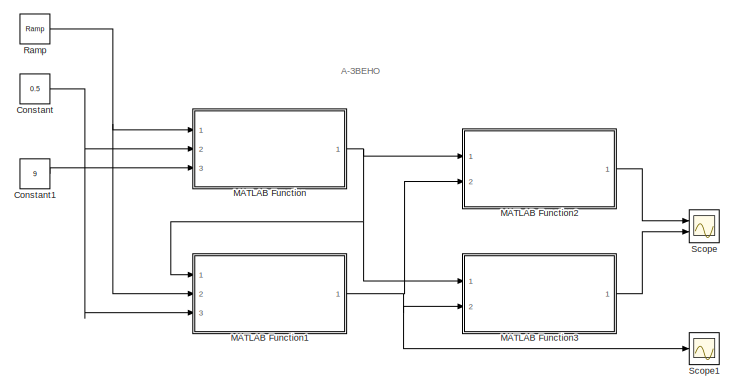
[diagram: root canvas - part 1/9, top right region]
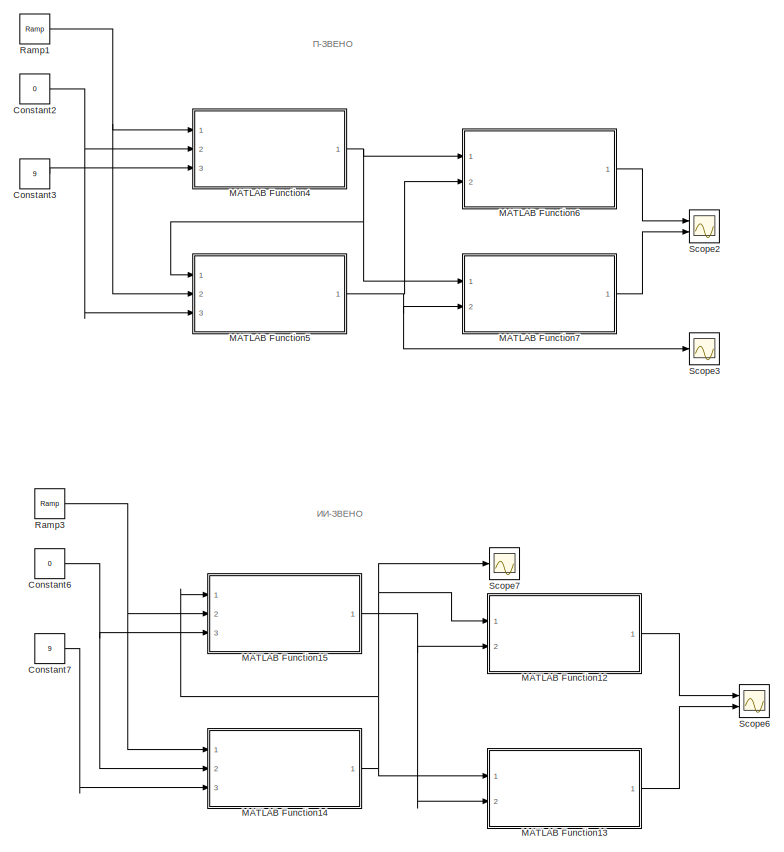
[diagram: root canvas - part 2/9, top right region]
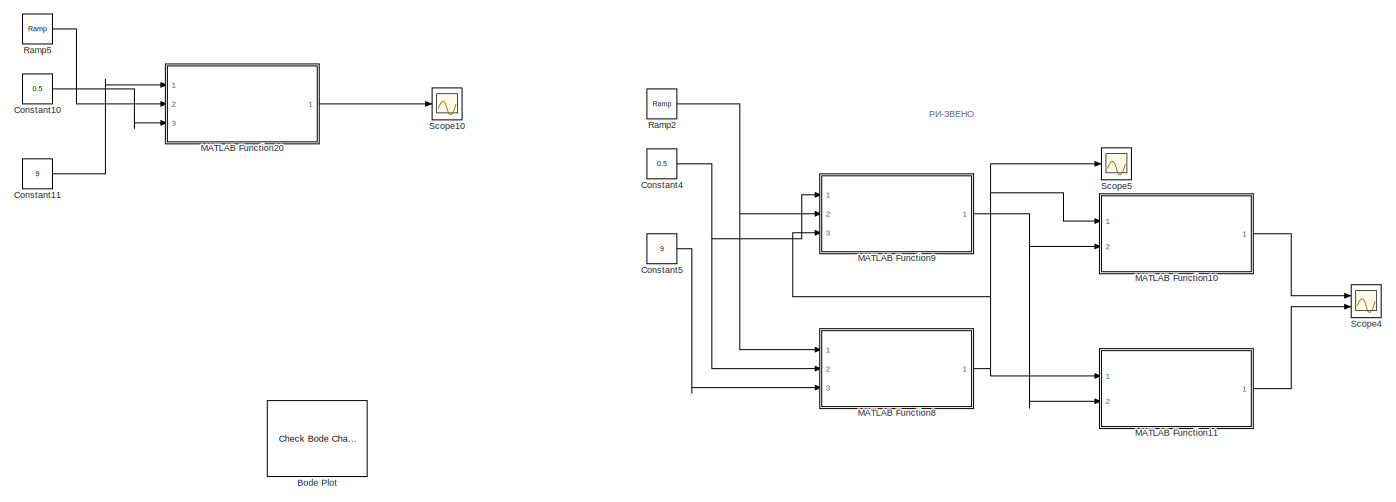
[diagram: root canvas - part 3/9, top right region]
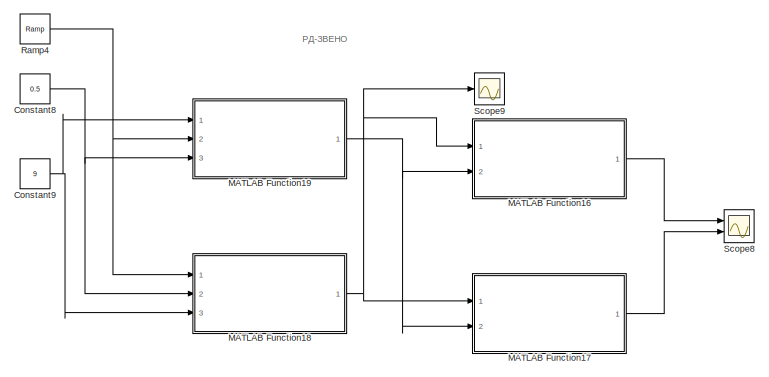
[diagram: root canvas - part 4/9, middle right region]
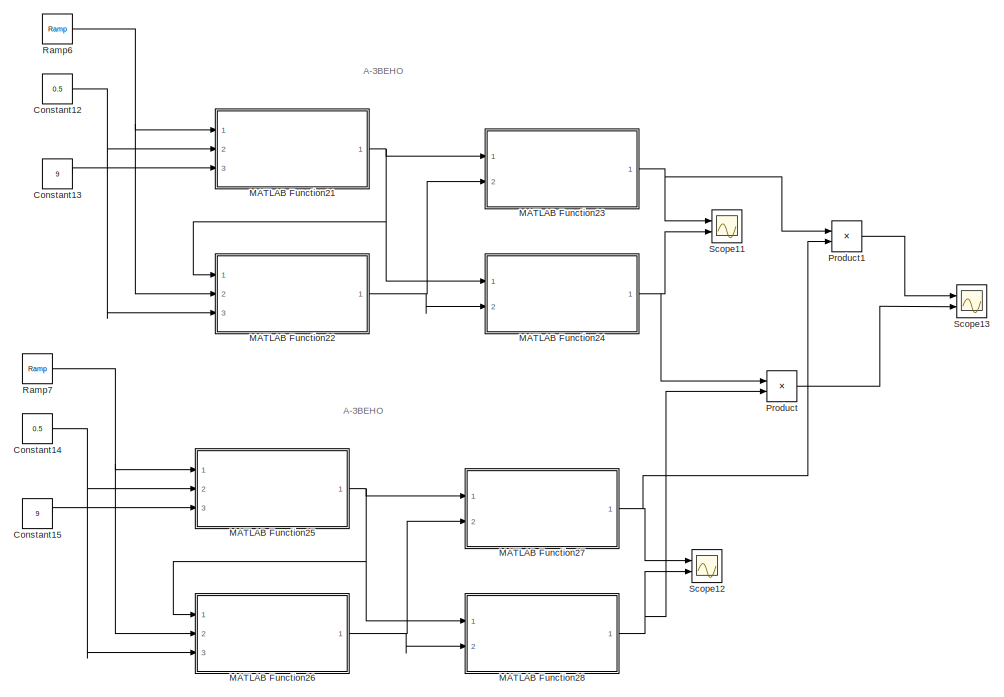
[diagram: root canvas - part 5/9, bottom left region]
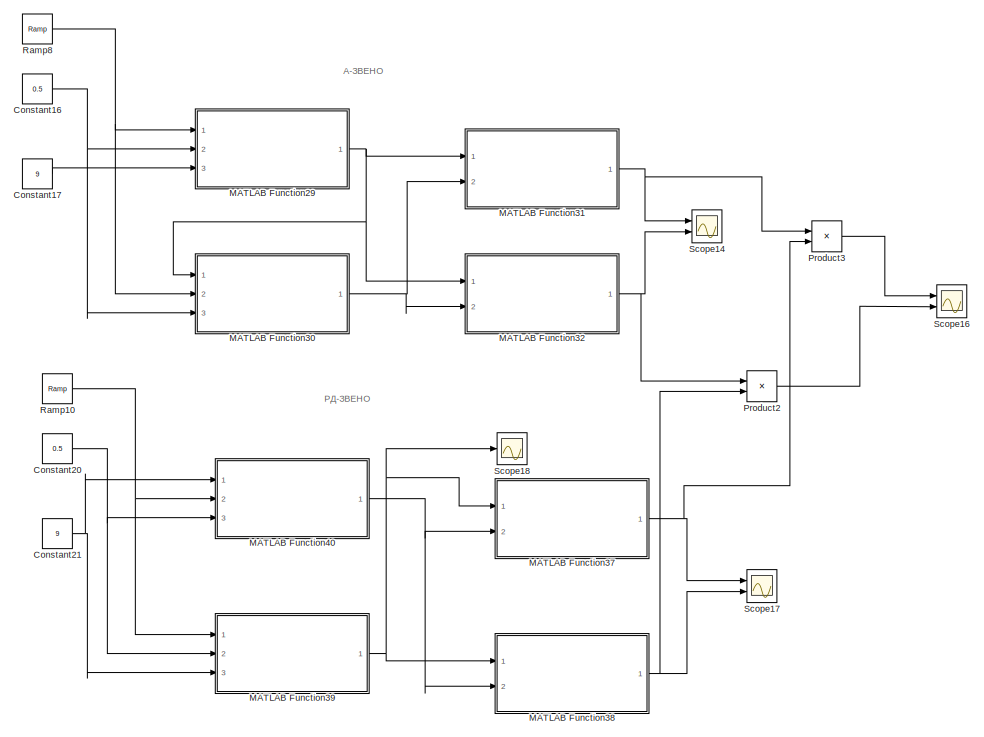
[diagram: root canvas - part 6/9, bottom left region]
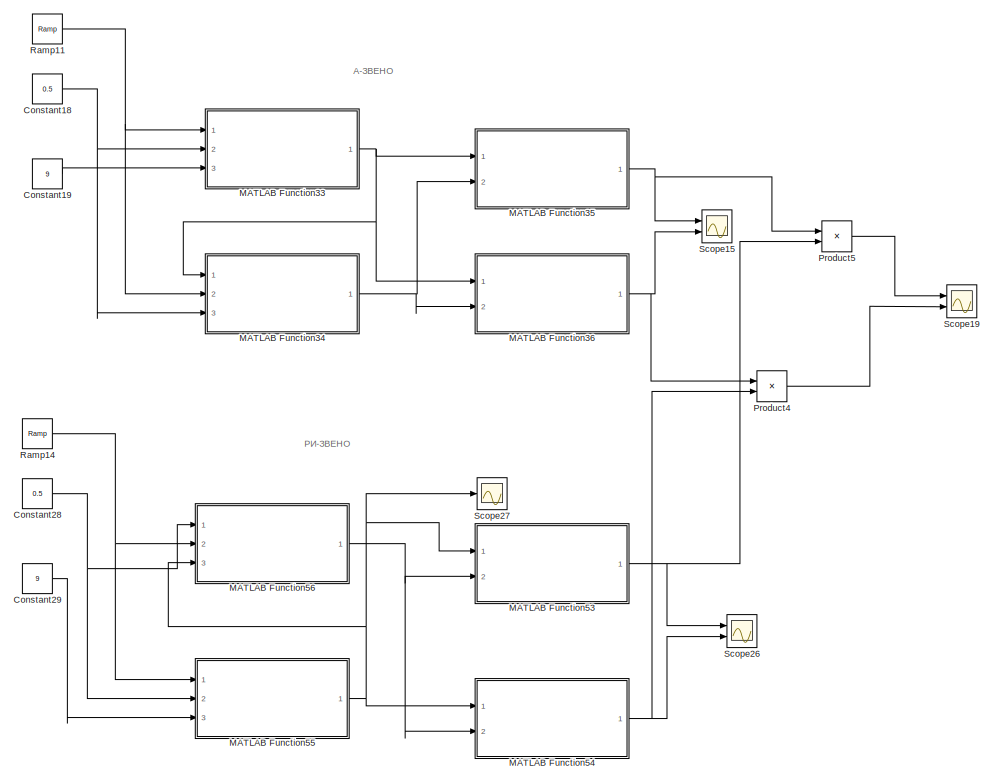
[diagram: root canvas - part 7/9, bottom left region]
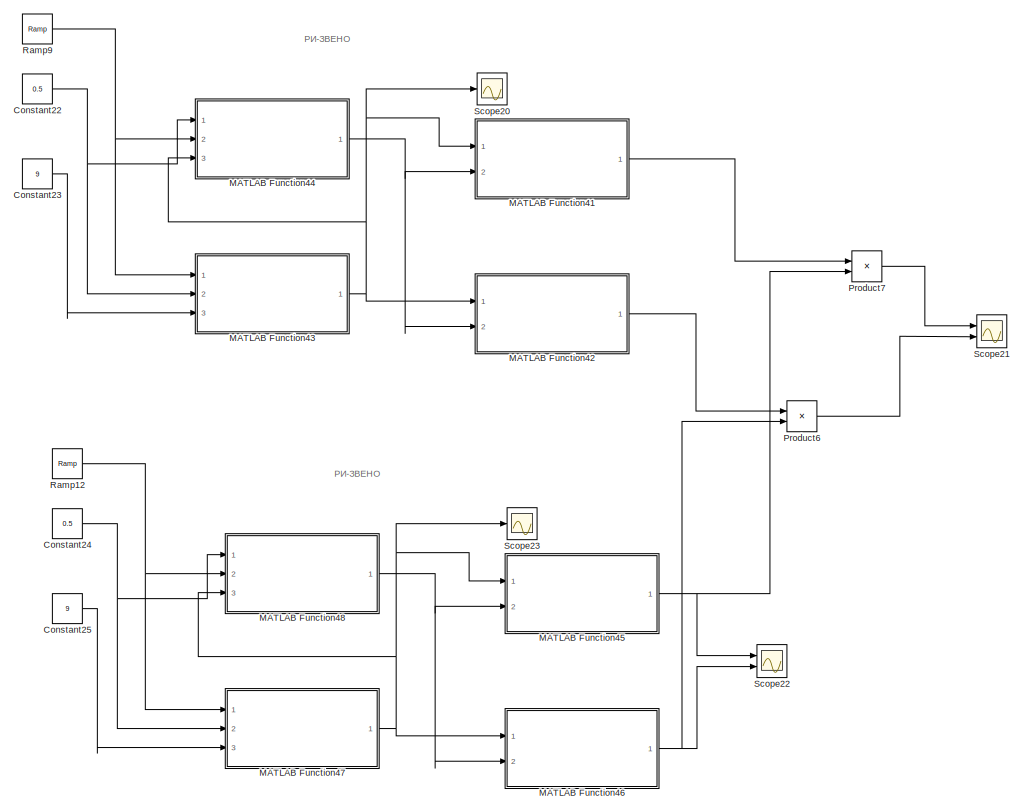
[diagram: root canvas - part 8/9, bottom center region]
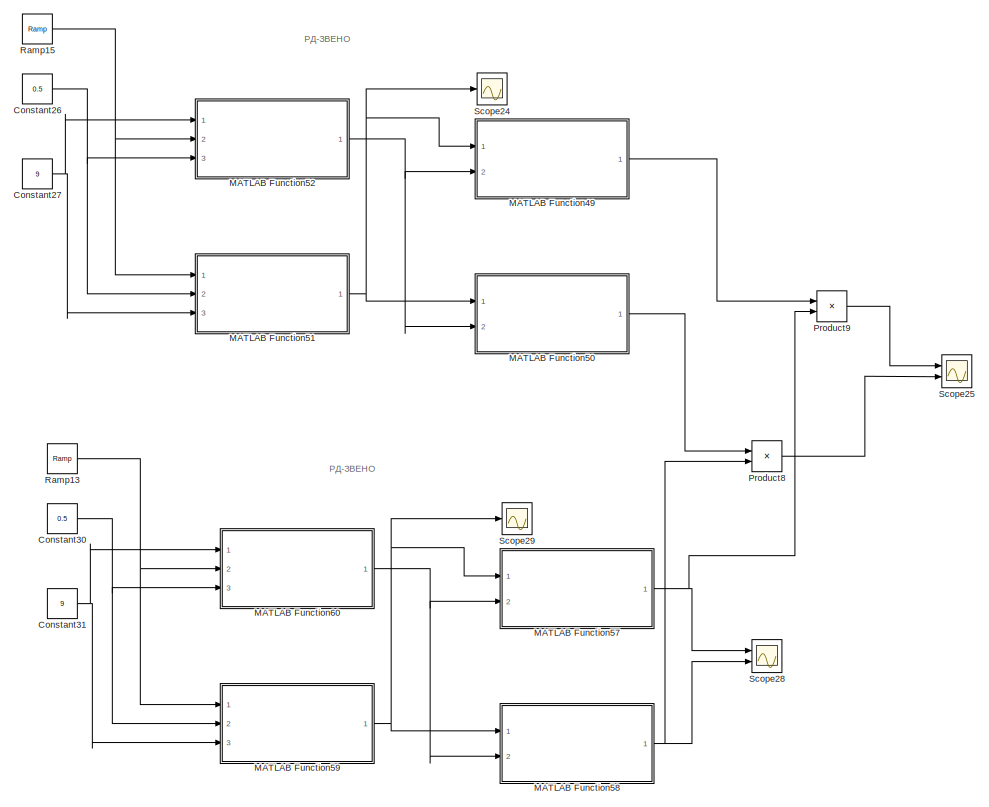
[diagram: root canvas - part 9/9, bottom center region]
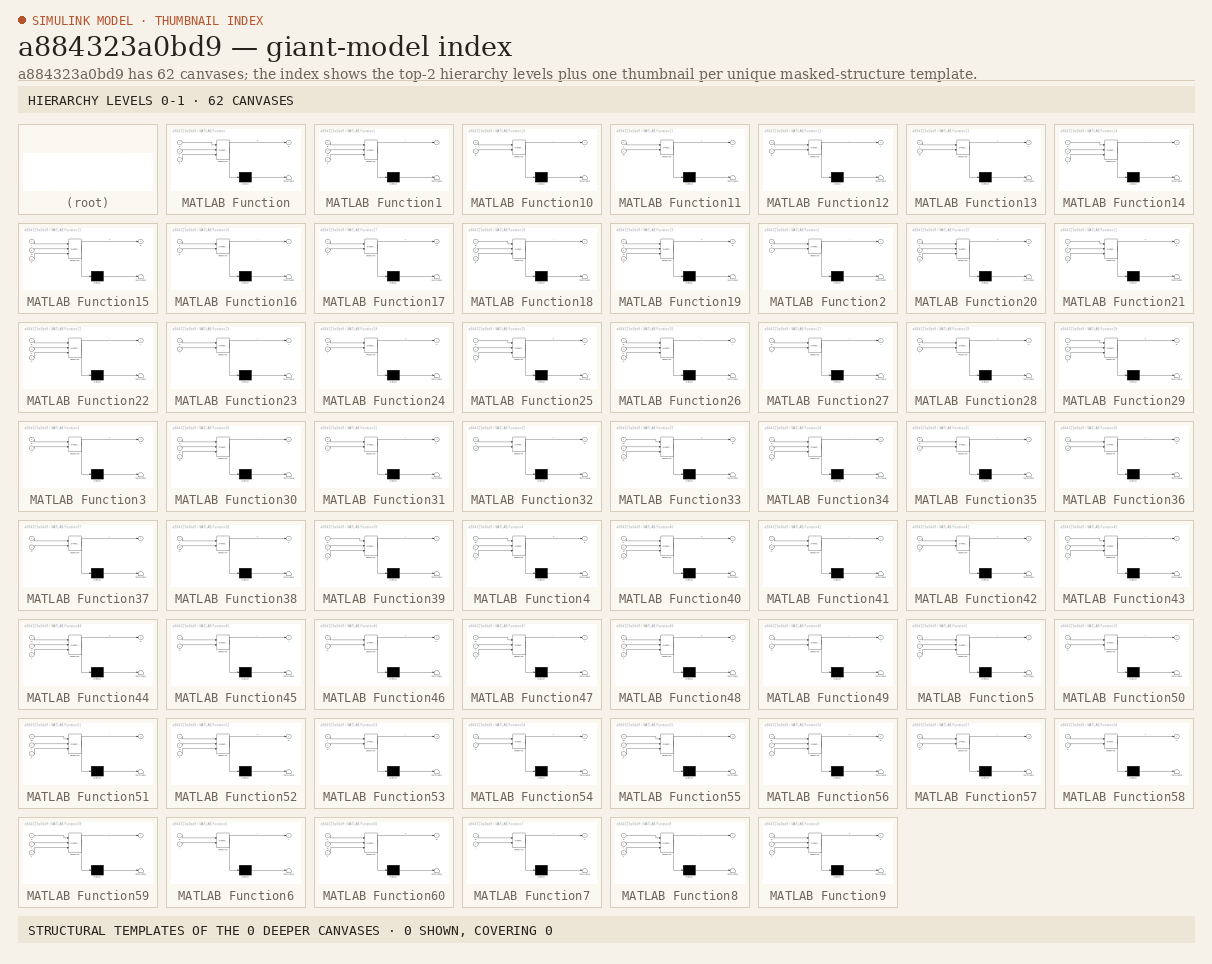
[diagram: thumbnail index - top-2 hierarchy levels (62 canvases) + 0 structural-template representatives of the remaining 0 canvases]
MODEL slx_a884323a0bd9
KIND model
CONFIG AbsTol = auto
CONFIG EnableMultiTasking = off
CONFIG FixedStep = auto
CONFIG MaxStep = auto
CONFIG MinStep = auto
CONFIG RelTol = 1e-3
CONFIG SampleTimeConstraint = Unconstrained
CONFIG Solver = VariableStepAuto
CONFIG SolverName = VariableStepAuto
CONFIG StartTime = 0.0
CONFIG StopTime = 1
BLOCK [Reference] Bode Plot  REF=slctrlblks/Model Verification/Check Bode 
Characteristics
  InstantiateOnLoad = on
  Ports = []
  SourceBlock = slctrlblks/Model Verification/Check Bode \nCharacteristics
  SourceProductBaseCode = SD
  SourceProductName = Simulink Control Design
  SourceType = Checks_Bode
BLOCK [Constant] Constant
  Value = 0.5
BLOCK [Constant] Constant1
  Value = 9
BLOCK [Constant] Constant10
  Value = 0.5
BLOCK [Constant] Constant11
  Value = 9
BLOCK [Constant] Constant12
  Value = 0.5
BLOCK [Constant] Constant13
  Value = 9
BLOCK [Constant] Constant14
  Value = 0.5
BLOCK [Constant] Constant15
  Value = 9
BLOCK [Constant] Constant16
  Value = 0.5
BLOCK [Constant] Constant17
  Value = 9
BLOCK [Constant] Constant18
  Value = 0.5
BLOCK [Constant] Constant19
  Value = 9
BLOCK [Constant] Constant2
  Value = 0
BLOCK [Constant] Constant20
  Value = 0.5
BLOCK [Constant] Constant21
  Value = 9
BLOCK [Constant] Constant22
  Value = 0.5
BLOCK [Constant] Constant23
  Value = 9
BLOCK [Constant] Constant24
  Value = 0.5
BLOCK [Constant] Constant25
  Value = 9
BLOCK [Constant] Constant26
  Value = 0.5
BLOCK [Constant] Constant27
  Value = 9
BLOCK [Constant] Constant28
  Value = 0.5
BLOCK [Constant] Constant29
  Value = 9
BLOCK [Constant] Constant3
  Value = 9
BLOCK [Constant] Constant30
  Value = 0.5
BLOCK [Constant] Constant31
  Value = 9
BLOCK [Constant] Constant4
  Value = 0.5
BLOCK [Constant] Constant5
  Value = 9
BLOCK [Constant] Constant6
  Value = 0
BLOCK [Constant] Constant7
  Value = 9
BLOCK [Constant] Constant8
  Value = 0.5
BLOCK [Constant] Constant9
  Value = 9
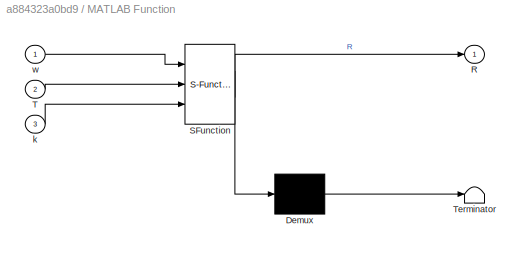
BLOCK [SubSystem] MATLAB Function
  ErrorFcn = Stateflow.Translate.translate
  PermitHierarchicalResolution = ExplicitOnly
  Ports = [3, 1]
  RequestExecContextInheritance = off
  SFBlockType = MATLAB Function
  TreatAsAtomicUnit = on
BLOCK [Demux] MATLAB Function/ Demux 
  Outputs = 1
  Ports = [1, 1]
BLOCK [S-Function] MATLAB Function/ SFunction 
  EnableBusSupport = on
  FunctionName = sf_sfun
  PortCounts = [3 2]
  Ports = [3, 2]
  SFcnIsStateOwnerBlock = off
  SFunctionDeploymentMode = off
  Tag = Stateflow S-Function 2
BLOCK [Terminator] MATLAB Function/ Terminator 
BLOCK [Outport] MATLAB Function/R
  IconDisplay = Port number
BLOCK [Inport] MATLAB Function/T
  IconDisplay = Port number
  Port = 2
BLOCK [Inport] MATLAB Function/k
  IconDisplay = Port number
  Port = 3
BLOCK [Inport] MATLAB Function/w
  IconDisplay = Port number
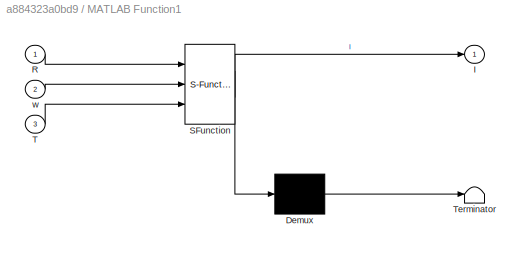
BLOCK [SubSystem] MATLAB Function1
  ErrorFcn = Stateflow.Translate.translate
  PermitHierarchicalResolution = ExplicitOnly
  Ports = [3, 1]
  RequestExecContextInheritance = off
  SFBlockType = MATLAB Function
  TreatAsAtomicUnit = on
BLOCK [Demux] MATLAB Function1/ Demux 
  Outputs = 1
  Ports = [1, 1]
BLOCK [S-Function] MATLAB Function1/ SFunction 
  EnableBusSupport = on
  FunctionName = sf_sfun
  PortCounts = [3 2]
  Ports = [3, 2]
  SFcnIsStateOwnerBlock = off
  SFunctionDeploymentMode = off
  Tag = Stateflow S-Function 1
BLOCK [Terminator] MATLAB Function1/ Terminator 
BLOCK [Outport] MATLAB Function1/I
  IconDisplay = Port number
BLOCK [Inport] MATLAB Function1/R
  IconDisplay = Port number
BLOCK [Inport] MATLAB Function1/T
  IconDisplay = Port number
  Port = 3
BLOCK [Inport] MATLAB Function1/w
  IconDisplay = Port number
  Port = 2
BLOCK [SubSystem] MATLAB Function10
  ErrorFcn = Stateflow.Translate.translate
  PermitHierarchicalResolution = ExplicitOnly
  Ports = [2, 1]
  RequestExecContextInheritance = off
  SFBlockType = MATLAB Function
  TreatAsAtomicUnit = on
BLOCK [Demux] MATLAB Function10/ Demux 
  Outputs = 1
  Ports = [1, 1]
BLOCK [S-Function] MATLAB Function10/ SFunction 
  EnableBusSupport = on
  FunctionName = sf_sfun
  PortCounts = [2 2]
  Ports = [2, 2]
  SFcnIsStateOwnerBlock = off
  SFunctionDeploymentMode = off
  Tag = Stateflow S-Function 9
BLOCK [Terminator] MATLAB Function10/ Terminator 
BLOCK [Outport] MATLAB Function10/A
  IconDisplay = Port number
BLOCK [Inport] MATLAB Function10/I
  IconDisplay = Port number
BLOCK [Inport] MATLAB Function10/R
  IconDisplay = Port number
  Port = 2
BLOCK [SubSystem] MATLAB Function11
  ErrorFcn = Stateflow.Translate.translate
  PermitHierarchicalResolution = ExplicitOnly
  Ports = [2, 1]
  RequestExecContextInheritance = off
  SFBlockType = MATLAB Function
  TreatAsAtomicUnit = on
BLOCK [Demux] MATLAB Function11/ Demux 
  Outputs = 1
  Ports = [1, 1]
BLOCK [S-Function] MATLAB Function11/ SFunction 
  EnableBusSupport = on
  FunctionName = sf_sfun
  PortCounts = [2 2]
  Ports = [2, 2]
  SFcnIsStateOwnerBlock = off
  SFunctionDeploymentMode = off
  Tag = Stateflow S-Function 10
BLOCK [Terminator] MATLAB Function11/ Terminator 
BLOCK [Inport] MATLAB Function11/I
  IconDisplay = Port number
BLOCK [Inport] MATLAB Function11/R
  IconDisplay = Port number
  Port = 2
BLOCK [Outport] MATLAB Function11/fi
  IconDisplay = Port number
BLOCK [SubSystem] MATLAB Function12
  ErrorFcn = Stateflow.Translate.translate
  PermitHierarchicalResolution = ExplicitOnly
  Ports = [2, 1]
  RequestExecContextInheritance = off
  SFBlockType = MATLAB Function
  TreatAsAtomicUnit = on
BLOCK [Demux] MATLAB Function12/ Demux 
  Outputs = 1
  Ports = [1, 1]
BLOCK [S-Function] MATLAB Function12/ SFunction 
  EnableBusSupport = on
  FunctionName = sf_sfun
  PortCounts = [2 2]
  Ports = [2, 2]
  SFcnIsStateOwnerBlock = off
  SFunctionDeploymentMode = off
  Tag = Stateflow S-Function 13
BLOCK [Terminator] MATLAB Function12/ Terminator 
BLOCK [Outport] MATLAB Function12/A
  IconDisplay = Port number
BLOCK [Inport] MATLAB Function12/I
  IconDisplay = Port number
BLOCK [Inport] MATLAB Function12/R
  IconDisplay = Port number
  Port = 2
BLOCK [SubSystem] MATLAB Function13
  ErrorFcn = Stateflow.Translate.translate
  PermitHierarchicalResolution = ExplicitOnly
  Ports = [2, 1]
  RequestExecContextInheritance = off
  SFBlockType = MATLAB Function
  TreatAsAtomicUnit = on
BLOCK [Demux] MATLAB Function13/ Demux 
  Outputs = 1
  Ports = [1, 1]
BLOCK [S-Function] MATLAB Function13/ SFunction 
  EnableBusSupport = on
  FunctionName = sf_sfun
  PortCounts = [2 2]
  Ports = [2, 2]
  SFcnIsStateOwnerBlock = off
  SFunctionDeploymentMode = off
  Tag = Stateflow S-Function 14
BLOCK [Terminator] MATLAB Function13/ Terminator 
BLOCK [Inport] MATLAB Function13/I
  IconDisplay = Port number
BLOCK [Inport] MATLAB Function13/R
  IconDisplay = Port number
  Port = 2
BLOCK [Outport] MATLAB Function13/fi
  IconDisplay = Port number
BLOCK [SubSystem] MATLAB Function14
  ErrorFcn = Stateflow.Translate.translate
  PermitHierarchicalResolution = ExplicitOnly
  Ports = [3, 1]
  RequestExecContextInheritance = off
  SFBlockType = MATLAB Function
  TreatAsAtomicUnit = on
BLOCK [Demux] MATLAB Function14/ Demux 
  Outputs = 1
  Ports = [1, 1]
BLOCK [S-Function] MATLAB Function14/ SFunction 
  EnableBusSupport = on
  FunctionName = sf_sfun
  PortCounts = [3 2]
  Ports = [3, 2]
  SFcnIsStateOwnerBlock = off
  SFunctionDeploymentMode = off
  Tag = Stateflow S-Function 15
BLOCK [Terminator] MATLAB Function14/ Terminator 
BLOCK [Outport] MATLAB Function14/I
  IconDisplay = Port number
BLOCK [Inport] MATLAB Function14/T
  IconDisplay = Port number
  Port = 2
BLOCK [Inport] MATLAB Function14/k
  IconDisplay = Port number
  Port = 3
BLOCK [Inport] MATLAB Function14/w
  IconDisplay = Port number
BLOCK [SubSystem] MATLAB Function15
  ErrorFcn = Stateflow.Translate.translate
  PermitHierarchicalResolution = ExplicitOnly
  Ports = [3, 1]
  RequestExecContextInheritance = off
  SFBlockType = MATLAB Function
  TreatAsAtomicUnit = on
BLOCK [Demux] MATLAB Function15/ Demux 
  Outputs = 1
  Ports = [1, 1]
BLOCK [S-Function] MATLAB Function15/ SFunction 
  EnableBusSupport = on
  FunctionName = sf_sfun
  PortCounts = [3 2]
  Ports = [3, 2]
  SFcnIsStateOwnerBlock = off
  SFunctionDeploymentMode = off
  Tag = Stateflow S-Function 16
BLOCK [Terminator] MATLAB Function15/ Terminator 
BLOCK [Inport] MATLAB Function15/I
  IconDisplay = Port number
BLOCK [Outport] MATLAB Function15/R
  IconDisplay = Port number
BLOCK [Inport] MATLAB Function15/T
  IconDisplay = Port number
  Port = 3
BLOCK [Inport] MATLAB Function15/w
  IconDisplay = Port number
  Port = 2
BLOCK [SubSystem] MATLAB Function16
  ErrorFcn = Stateflow.Translate.translate
  PermitHierarchicalResolution = ExplicitOnly
  Ports = [2, 1]
  RequestExecContextInheritance = off
  SFBlockType = MATLAB Function
  TreatAsAtomicUnit = on
BLOCK [Demux] MATLAB Function16/ Demux 
  Outputs = 1
  Ports = [1, 1]
BLOCK [S-Function] MATLAB Function16/ SFunction 
  EnableBusSupport = on
  FunctionName = sf_sfun
  PortCounts = [2 2]
  Ports = [2, 2]
  SFcnIsStateOwnerBlock = off
  SFunctionDeploymentMode = off
  Tag = Stateflow S-Function 17
BLOCK [Terminator] MATLAB Function16/ Terminator 
BLOCK [Outport] MATLAB Function16/A
  IconDisplay = Port number
BLOCK [Inport] MATLAB Function16/I
  IconDisplay = Port number
BLOCK [Inport] MATLAB Function16/R
  IconDisplay = Port number
  Port = 2
BLOCK [SubSystem] MATLAB Function17
  ErrorFcn = Stateflow.Translate.translate
  PermitHierarchicalResolution = ExplicitOnly
  Ports = [2, 1]
  RequestExecContextInheritance = off
  SFBlockType = MATLAB Function
  TreatAsAtomicUnit = on
BLOCK [Demux] MATLAB Function17/ Demux 
  Outputs = 1
  Ports = [1, 1]
BLOCK [S-Function] MATLAB Function17/ SFunction 
  EnableBusSupport = on
  FunctionName = sf_sfun
  PortCounts = [2 2]
  Ports = [2, 2]
  SFcnIsStateOwnerBlock = off
  SFunctionDeploymentMode = off
  Tag = Stateflow S-Function 18
BLOCK [Terminator] MATLAB Function17/ Terminator 
BLOCK [Inport] MATLAB Function17/I
  IconDisplay = Port number
BLOCK [Inport] MATLAB Function17/R
  IconDisplay = Port number
  Port = 2
BLOCK [Outport] MATLAB Function17/fi
  IconDisplay = Port number
BLOCK [SubSystem] MATLAB Function18
  ErrorFcn = Stateflow.Translate.translate
  PermitHierarchicalResolution = ExplicitOnly
  Ports = [3, 1]
  RequestExecContextInheritance = off
  SFBlockType = MATLAB Function
  TreatAsAtomicUnit = on
BLOCK [Demux] MATLAB Function18/ Demux 
  Outputs = 1
  Ports = [1, 1]
BLOCK [S-Function] MATLAB Function18/ SFunction 
  EnableBusSupport = on
  FunctionName = sf_sfun
  PortCounts = [3 2]
  Ports = [3, 2]
  SFcnIsStateOwnerBlock = off
  SFunctionDeploymentMode = off
  Tag = Stateflow S-Function 19
BLOCK [Terminator] MATLAB Function18/ Terminator 
BLOCK [Outport] MATLAB Function18/I
  IconDisplay = Port number
BLOCK [Inport] MATLAB Function18/T
  IconDisplay = Port number
  Port = 2
BLOCK [Inport] MATLAB Function18/k
  IconDisplay = Port number
  Port = 3
BLOCK [Inport] MATLAB Function18/w
  IconDisplay = Port number
BLOCK [SubSystem] MATLAB Function19
  ErrorFcn = Stateflow.Translate.translate
  PermitHierarchicalResolution = ExplicitOnly
  Ports = [3, 1]
  RequestExecContextInheritance = off
  SFBlockType = MATLAB Function
  TreatAsAtomicUnit = on
BLOCK [Demux] MATLAB Function19/ Demux 
  Outputs = 1
  Ports = [1, 1]
BLOCK [S-Function] MATLAB Function19/ SFunction 
  EnableBusSupport = on
  FunctionName = sf_sfun
  PortCounts = [3 2]
  Ports = [3, 2]
  SFcnIsStateOwnerBlock = off
  SFunctionDeploymentMode = off
  Tag = Stateflow S-Function 20
BLOCK [Terminator] MATLAB Function19/ Terminator 
BLOCK [Outport] MATLAB Function19/R
  IconDisplay = Port number
BLOCK [Inport] MATLAB Function19/T
  IconDisplay = Port number
  Port = 3
BLOCK [Inport] MATLAB Function19/k
  IconDisplay = Port number
BLOCK [Inport] MATLAB Function19/w
  IconDisplay = Port number
  Port = 2
BLOCK [SubSystem] MATLAB Function2
  ErrorFcn = Stateflow.Translate.translate
  PermitHierarchicalResolution = ExplicitOnly
  Ports = [2, 1]
  RequestExecContextInheritance = off
  SFBlockType = MATLAB Function
  TreatAsAtomicUnit = on
BLOCK [Demux] MATLAB Function2/ Demux 
  Outputs = 1
  Ports = [1, 1]
BLOCK [S-Function] MATLAB Function2/ SFunction 
  EnableBusSupport = on
  FunctionName = sf_sfun
  PortCounts = [2 2]
  Ports = [2, 2]
  SFcnIsStateOwnerBlock = off
  SFunctionDeploymentMode = off
  Tag = Stateflow S-Function 3
BLOCK [Terminator] MATLAB Function2/ Terminator 
BLOCK [Outport] MATLAB Function2/A
  IconDisplay = Port number
BLOCK [Inport] MATLAB Function2/I
  IconDisplay = Port number
  Port = 2
BLOCK [Inport] MATLAB Function2/R
  IconDisplay = Port number
BLOCK [SubSystem] MATLAB Function20
  ErrorFcn = Stateflow.Translate.translate
  PermitHierarchicalResolution = ExplicitOnly
  Ports = [3, 1]
  RequestExecContextInheritance = off
  SFBlockType = MATLAB Function
  TreatAsAtomicUnit = on
BLOCK [Demux] MATLAB Function20/ Demux 
  Outputs = 1
  Ports = [1, 1]
BLOCK [S-Function] MATLAB Function20/ SFunction 
  EnableBusSupport = on
  FunctionName = sf_sfun
  PortCounts = [3 2]
  Ports = [3, 2]
  SFcnIsStateOwnerBlock = off
  SFunctionDeploymentMode = off
  Tag = Stateflow S-Function 21
BLOCK [Terminator] MATLAB Function20/ Terminator 
BLOCK [Outport] MATLAB Function20/R
  IconDisplay = Port number
BLOCK [Inport] MATLAB Function20/T
  IconDisplay = Port number
  Port = 3
BLOCK [Inport] MATLAB Function20/k
  IconDisplay = Port number
BLOCK [Inport] MATLAB Function20/w
  IconDisplay = Port number
  Port = 2
BLOCK [SubSystem] MATLAB Function21
  ErrorFcn = Stateflow.Translate.translate
  PermitHierarchicalResolution = ExplicitOnly
  Ports = [3, 1]
  RequestExecContextInheritance = off
  SFBlockType = MATLAB Function
  TreatAsAtomicUnit = on
BLOCK [Demux] MATLAB Function21/ Demux 
  Outputs = 1
  Ports = [1, 1]
BLOCK [S-Function] MATLAB Function21/ SFunction 
  EnableBusSupport = on
  FunctionName = sf_sfun
  PortCounts = [3 2]
  Ports = [3, 2]
  SFcnIsStateOwnerBlock = off
  SFunctionDeploymentMode = off
  Tag = Stateflow S-Function 22
BLOCK [Terminator] MATLAB Function21/ Terminator 
BLOCK [Outport] MATLAB Function21/R
  IconDisplay = Port number
BLOCK [Inport] MATLAB Function21/T
  IconDisplay = Port number
  Port = 2
BLOCK [Inport] MATLAB Function21/k
  IconDisplay = Port number
  Port = 3
BLOCK [Inport] MATLAB Function21/w
  IconDisplay = Port number
BLOCK [SubSystem] MATLAB Function22
  ErrorFcn = Stateflow.Translate.translate
  PermitHierarchicalResolution = ExplicitOnly
  Ports = [3, 1]
  RequestExecContextInheritance = off
  SFBlockType = MATLAB Function
  TreatAsAtomicUnit = on
BLOCK [Demux] MATLAB Function22/ Demux 
  Outputs = 1
  Ports = [1, 1]
BLOCK [S-Function] MATLAB Function22/ SFunction 
  EnableBusSupport = on
  FunctionName = sf_sfun
  PortCounts = [3 2]
  Ports = [3, 2]
  SFcnIsStateOwnerBlock = off
  SFunctionDeploymentMode = off
  Tag = Stateflow S-Function 23
BLOCK [Terminator] MATLAB Function22/ Terminator 
BLOCK [Outport] MATLAB Function22/I
  IconDisplay = Port number
BLOCK [Inport] MATLAB Function22/R
  IconDisplay = Port number
BLOCK [Inport] MATLAB Function22/T
  IconDisplay = Port number
  Port = 3
BLOCK [Inport] MATLAB Function22/w
  IconDisplay = Port number
  Port = 2
BLOCK [SubSystem] MATLAB Function23
  ErrorFcn = Stateflow.Translate.translate
  PermitHierarchicalResolution = ExplicitOnly
  Ports = [2, 1]
  RequestExecContextInheritance = off
  SFBlockType = MATLAB Function
  TreatAsAtomicUnit = on
BLOCK [Demux] MATLAB Function23/ Demux 
  Outputs = 1
  Ports = [1, 1]
BLOCK [S-Function] MATLAB Function23/ SFunction 
  EnableBusSupport = on
  FunctionName = sf_sfun
  PortCounts = [2 2]
  Ports = [2, 2]
  SFcnIsStateOwnerBlock = off
  SFunctionDeploymentMode = off
  Tag = Stateflow S-Function 24
BLOCK [Terminator] MATLAB Function23/ Terminator 
BLOCK [Outport] MATLAB Function23/A
  IconDisplay = Port number
BLOCK [Inport] MATLAB Function23/I
  IconDisplay = Port number
  Port = 2
BLOCK [Inport] MATLAB Function23/R
  IconDisplay = Port number
BLOCK [SubSystem] MATLAB Function24
  ErrorFcn = Stateflow.Translate.translate
  PermitHierarchicalResolution = ExplicitOnly
  Ports = [2, 1]
  RequestExecContextInheritance = off
  SFBlockType = MATLAB Function
  TreatAsAtomicUnit = on
BLOCK [Demux] MATLAB Function24/ Demux 
  Outputs = 1
  Ports = [1, 1]
BLOCK [S-Function] MATLAB Function24/ SFunction 
  EnableBusSupport = on
  FunctionName = sf_sfun
  PortCounts = [2 2]
  Ports = [2, 2]
  SFcnIsStateOwnerBlock = off
  SFunctionDeploymentMode = off
  Tag = Stateflow S-Function 25
BLOCK [Terminator] MATLAB Function24/ Terminator 
BLOCK [Inport] MATLAB Function24/I
  IconDisplay = Port number
  Port = 2
BLOCK [Inport] MATLAB Function24/R
  IconDisplay = Port number
BLOCK [Outport] MATLAB Function24/fi
  IconDisplay = Port number
BLOCK [SubSystem] MATLAB Function25
  ErrorFcn = Stateflow.Translate.translate
  PermitHierarchicalResolution = ExplicitOnly
  Ports = [3, 1]
  RequestExecContextInheritance = off
  SFBlockType = MATLAB Function
  TreatAsAtomicUnit = on
BLOCK [Demux] MATLAB Function25/ Demux 
  Outputs = 1
  Ports = [1, 1]
BLOCK [S-Function] MATLAB Function25/ SFunction 
  EnableBusSupport = on
  FunctionName = sf_sfun
  PortCounts = [3 2]
  Ports = [3, 2]
  SFcnIsStateOwnerBlock = off
  SFunctionDeploymentMode = off
  Tag = Stateflow S-Function 26
BLOCK [Terminator] MATLAB Function25/ Terminator 
BLOCK [Outport] MATLAB Function25/R
  IconDisplay = Port number
BLOCK [Inport] MATLAB Function25/T
  IconDisplay = Port number
  Port = 2
BLOCK [Inport] MATLAB Function25/k
  IconDisplay = Port number
  Port = 3
BLOCK [Inport] MATLAB Function25/w
  IconDisplay = Port number
BLOCK [SubSystem] MATLAB Function26
  ErrorFcn = Stateflow.Translate.translate
  PermitHierarchicalResolution = ExplicitOnly
  Ports = [3, 1]
  RequestExecContextInheritance = off
  SFBlockType = MATLAB Function
  TreatAsAtomicUnit = on
BLOCK [Demux] MATLAB Function26/ Demux 
  Outputs = 1
  Ports = [1, 1]
BLOCK [S-Function] MATLAB Function26/ SFunction 
  EnableBusSupport = on
  FunctionName = sf_sfun
  PortCounts = [3 2]
  Ports = [3, 2]
  SFcnIsStateOwnerBlock = off
  SFunctionDeploymentMode = off
  Tag = Stateflow S-Function 27
BLOCK [Terminator] MATLAB Function26/ Terminator 
BLOCK [Outport] MATLAB Function26/I
  IconDisplay = Port number
BLOCK [Inport] MATLAB Function26/R
  IconDisplay = Port number
BLOCK [Inport] MATLAB Function26/T
  IconDisplay = Port number
  Port = 3
BLOCK [Inport] MATLAB Function26/w
  IconDisplay = Port number
  Port = 2
BLOCK [SubSystem] MATLAB Function27
  ErrorFcn = Stateflow.Translate.translate
  PermitHierarchicalResolution = ExplicitOnly
  Ports = [2, 1]
  RequestExecContextInheritance = off
  SFBlockType = MATLAB Function
  TreatAsAtomicUnit = on
BLOCK [Demux] MATLAB Function27/ Demux 
  Outputs = 1
  Ports = [1, 1]
BLOCK [S-Function] MATLAB Function27/ SFunction 
  EnableBusSupport = on
  FunctionName = sf_sfun
  PortCounts = [2 2]
  Ports = [2, 2]
  SFcnIsStateOwnerBlock = off
  SFunctionDeploymentMode = off
  Tag = Stateflow S-Function 28
BLOCK [Terminator] MATLAB Function27/ Terminator 
BLOCK [Outport] MATLAB Function27/A
  IconDisplay = Port number
BLOCK [Inport] MATLAB Function27/I
  IconDisplay = Port number
  Port = 2
BLOCK [Inport] MATLAB Function27/R
  IconDisplay = Port number
BLOCK [SubSystem] MATLAB Function28
  ErrorFcn = Stateflow.Translate.translate
  PermitHierarchicalResolution = ExplicitOnly
  Ports = [2, 1]
  RequestExecContextInheritance = off
  SFBlockType = MATLAB Function
  TreatAsAtomicUnit = on
BLOCK [Demux] MATLAB Function28/ Demux 
  Outputs = 1
  Ports = [1, 1]
BLOCK [S-Function] MATLAB Function28/ SFunction 
  EnableBusSupport = on
  FunctionName = sf_sfun
  PortCounts = [2 2]
  Ports = [2, 2]
  SFcnIsStateOwnerBlock = off
  SFunctionDeploymentMode = off
  Tag = Stateflow S-Function 29
BLOCK [Terminator] MATLAB Function28/ Terminator 
BLOCK [Inport] MATLAB Function28/I
  IconDisplay = Port number
  Port = 2
BLOCK [Inport] MATLAB Function28/R
  IconDisplay = Port number
BLOCK [Outport] MATLAB Function28/fi
  IconDisplay = Port number
BLOCK [SubSystem] MATLAB Function29
  ErrorFcn = Stateflow.Translate.translate
  PermitHierarchicalResolution = ExplicitOnly
  Ports = [3, 1]
  RequestExecContextInheritance = off
  SFBlockType = MATLAB Function
  TreatAsAtomicUnit = on
BLOCK [Demux] MATLAB Function29/ Demux 
  Outputs = 1
  Ports = [1, 1]
BLOCK [S-Function] MATLAB Function29/ SFunction 
  EnableBusSupport = on
  FunctionName = sf_sfun
  PortCounts = [3 2]
  Ports = [3, 2]
  SFcnIsStateOwnerBlock = off
  SFunctionDeploymentMode = off
  Tag = Stateflow S-Function 30
BLOCK [Terminator] MATLAB Function29/ Terminator 
BLOCK [Outport] MATLAB Function29/R
  IconDisplay = Port number
BLOCK [Inport] MATLAB Function29/T
  IconDisplay = Port number
  Port = 2
BLOCK [Inport] MATLAB Function29/k
  IconDisplay = Port number
  Port = 3
BLOCK [Inport] MATLAB Function29/w
  IconDisplay = Port number
BLOCK [SubSystem] MATLAB Function3
  ErrorFcn = Stateflow.Translate.translate
  PermitHierarchicalResolution = ExplicitOnly
  Ports = [2, 1]
  RequestExecContextInheritance = off
  SFBlockType = MATLAB Function
  TreatAsAtomicUnit = on
BLOCK [Demux] MATLAB Function3/ Demux 
  Outputs = 1
  Ports = [1, 1]
BLOCK [S-Function] MATLAB Function3/ SFunction 
  EnableBusSupport = on
  FunctionName = sf_sfun
  PortCounts = [2 2]
  Ports = [2, 2]
  SFcnIsStateOwnerBlock = off
  SFunctionDeploymentMode = off
  Tag = Stateflow S-Function 4
BLOCK [Terminator] MATLAB Function3/ Terminator 
BLOCK [Inport] MATLAB Function3/I
  IconDisplay = Port number
  Port = 2
BLOCK [Inport] MATLAB Function3/R
  IconDisplay = Port number
BLOCK [Outport] MATLAB Function3/fi
  IconDisplay = Port number
BLOCK [SubSystem] MATLAB Function30
  ErrorFcn = Stateflow.Translate.translate
  PermitHierarchicalResolution = ExplicitOnly
  Ports = [3, 1]
  RequestExecContextInheritance = off
  SFBlockType = MATLAB Function
  TreatAsAtomicUnit = on
BLOCK [Demux] MATLAB Function30/ Demux 
  Outputs = 1
  Ports = [1, 1]
BLOCK [S-Function] MATLAB Function30/ SFunction 
  EnableBusSupport = on
  FunctionName = sf_sfun
  PortCounts = [3 2]
  Ports = [3, 2]
  SFcnIsStateOwnerBlock = off
  SFunctionDeploymentMode = off
  Tag = Stateflow S-Function 31
BLOCK [Terminator] MATLAB Function30/ Terminator 
BLOCK [Outport] MATLAB Function30/I
  IconDisplay = Port number
BLOCK [Inport] MATLAB Function30/R
  IconDisplay = Port number
BLOCK [Inport] MATLAB Function30/T
  IconDisplay = Port number
  Port = 3
BLOCK [Inport] MATLAB Function30/w
  IconDisplay = Port number
  Port = 2
BLOCK [SubSystem] MATLAB Function31
  ErrorFcn = Stateflow.Translate.translate
  PermitHierarchicalResolution = ExplicitOnly
  Ports = [2, 1]
  RequestExecContextInheritance = off
  SFBlockType = MATLAB Function
  TreatAsAtomicUnit = on
BLOCK [Demux] MATLAB Function31/ Demux 
  Outputs = 1
  Ports = [1, 1]
BLOCK [S-Function] MATLAB Function31/ SFunction 
  EnableBusSupport = on
  FunctionName = sf_sfun
  PortCounts = [2 2]
  Ports = [2, 2]
  SFcnIsStateOwnerBlock = off
  SFunctionDeploymentMode = off
  Tag = Stateflow S-Function 32
BLOCK [Terminator] MATLAB Function31/ Terminator 
BLOCK [Outport] MATLAB Function31/A
  IconDisplay = Port number
BLOCK [Inport] MATLAB Function31/I
  IconDisplay = Port number
  Port = 2
BLOCK [Inport] MATLAB Function31/R
  IconDisplay = Port number
BLOCK [SubSystem] MATLAB Function32
  ErrorFcn = Stateflow.Translate.translate
  PermitHierarchicalResolution = ExplicitOnly
  Ports = [2, 1]
  RequestExecContextInheritance = off
  SFBlockType = MATLAB Function
  TreatAsAtomicUnit = on
BLOCK [Demux] MATLAB Function32/ Demux 
  Outputs = 1
  Ports = [1, 1]
BLOCK [S-Function] MATLAB Function32/ SFunction 
  EnableBusSupport = on
  FunctionName = sf_sfun
  PortCounts = [2 2]
  Ports = [2, 2]
  SFcnIsStateOwnerBlock = off
  SFunctionDeploymentMode = off
  Tag = Stateflow S-Function 33
BLOCK [Terminator] MATLAB Function32/ Terminator 
BLOCK [Inport] MATLAB Function32/I
  IconDisplay = Port number
  Port = 2
BLOCK [Inport] MATLAB Function32/R
  IconDisplay = Port number
BLOCK [Outport] MATLAB Function32/fi
  IconDisplay = Port number
BLOCK [SubSystem] MATLAB Function33
  ErrorFcn = Stateflow.Translate.translate
  PermitHierarchicalResolution = ExplicitOnly
  Ports = [3, 1]
  RequestExecContextInheritance = off
  SFBlockType = MATLAB Function
  TreatAsAtomicUnit = on
BLOCK [Demux] MATLAB Function33/ Demux 
  Outputs = 1
  Ports = [1, 1]
BLOCK [S-Function] MATLAB Function33/ SFunction 
  EnableBusSupport = on
  FunctionName = sf_sfun
  PortCounts = [3 2]
  Ports = [3, 2]
  SFcnIsStateOwnerBlock = off
  SFunctionDeploymentMode = off
  Tag = Stateflow S-Function 34
BLOCK [Terminator] MATLAB Function33/ Terminator 
BLOCK [Outport] MATLAB Function33/R
  IconDisplay = Port number
BLOCK [Inport] MATLAB Function33/T
  IconDisplay = Port number
  Port = 2
BLOCK [Inport] MATLAB Function33/k
  IconDisplay = Port number
  Port = 3
BLOCK [Inport] MATLAB Function33/w
  IconDisplay = Port number
BLOCK [SubSystem] MATLAB Function34
  ErrorFcn = Stateflow.Translate.translate
  PermitHierarchicalResolution = ExplicitOnly
  Ports = [3, 1]
  RequestExecContextInheritance = off
  SFBlockType = MATLAB Function
  TreatAsAtomicUnit = on
BLOCK [Demux] MATLAB Function34/ Demux 
  Outputs = 1
  Ports = [1, 1]
BLOCK [S-Function] MATLAB Function34/ SFunction 
  EnableBusSupport = on
  FunctionName = sf_sfun
  PortCounts = [3 2]
  Ports = [3, 2]
  SFcnIsStateOwnerBlock = off
  SFunctionDeploymentMode = off
  Tag = Stateflow S-Function 35
BLOCK [Terminator] MATLAB Function34/ Terminator 
BLOCK [Outport] MATLAB Function34/I
  IconDisplay = Port number
BLOCK [Inport] MATLAB Function34/R
  IconDisplay = Port number
BLOCK [Inport] MATLAB Function34/T
  IconDisplay = Port number
  Port = 3
BLOCK [Inport] MATLAB Function34/w
  IconDisplay = Port number
  Port = 2
BLOCK [SubSystem] MATLAB Function35
  ErrorFcn = Stateflow.Translate.translate
  PermitHierarchicalResolution = ExplicitOnly
  Ports = [2, 1]
  RequestExecContextInheritance = off
  SFBlockType = MATLAB Function
  TreatAsAtomicUnit = on
BLOCK [Demux] MATLAB Function35/ Demux 
  Outputs = 1
  Ports = [1, 1]
BLOCK [S-Function] MATLAB Function35/ SFunction 
  EnableBusSupport = on
  FunctionName = sf_sfun
  PortCounts = [2 2]
  Ports = [2, 2]
  SFcnIsStateOwnerBlock = off
  SFunctionDeploymentMode = off
  Tag = Stateflow S-Function 36
BLOCK [Terminator] MATLAB Function35/ Terminator 
BLOCK [Outport] MATLAB Function35/A
  IconDisplay = Port number
BLOCK [Inport] MATLAB Function35/I
  IconDisplay = Port number
  Port = 2
BLOCK [Inport] MATLAB Function35/R
  IconDisplay = Port number
BLOCK [SubSystem] MATLAB Function36
  ErrorFcn = Stateflow.Translate.translate
  PermitHierarchicalResolution = ExplicitOnly
  Ports = [2, 1]
  RequestExecContextInheritance = off
  SFBlockType = MATLAB Function
  TreatAsAtomicUnit = on
BLOCK [Demux] MATLAB Function36/ Demux 
  Outputs = 1
  Ports = [1, 1]
BLOCK [S-Function] MATLAB Function36/ SFunction 
  EnableBusSupport = on
  FunctionName = sf_sfun
  PortCounts = [2 2]
  Ports = [2, 2]
  SFcnIsStateOwnerBlock = off
  SFunctionDeploymentMode = off
  Tag = Stateflow S-Function 37
BLOCK [Terminator] MATLAB Function36/ Terminator 
BLOCK [Inport] MATLAB Function36/I
  IconDisplay = Port number
  Port = 2
BLOCK [Inport] MATLAB Function36/R
  IconDisplay = Port number
BLOCK [Outport] MATLAB Function36/fi
  IconDisplay = Port number
BLOCK [SubSystem] MATLAB Function37
  ErrorFcn = Stateflow.Translate.translate
  PermitHierarchicalResolution = ExplicitOnly
  Ports = [2, 1]
  RequestExecContextInheritance = off
  SFBlockType = MATLAB Function
  TreatAsAtomicUnit = on
BLOCK [Demux] MATLAB Function37/ Demux 
  Outputs = 1
  Ports = [1, 1]
BLOCK [S-Function] MATLAB Function37/ SFunction 
  EnableBusSupport = on
  FunctionName = sf_sfun
  PortCounts = [2 2]
  Ports = [2, 2]
  SFcnIsStateOwnerBlock = off
  SFunctionDeploymentMode = off
  Tag = Stateflow S-Function 38
BLOCK [Terminator] MATLAB Function37/ Terminator 
BLOCK [Outport] MATLAB Function37/A
  IconDisplay = Port number
BLOCK [Inport] MATLAB Function37/I
  IconDisplay = Port number
BLOCK [Inport] MATLAB Function37/R
  IconDisplay = Port number
  Port = 2
BLOCK [SubSystem] MATLAB Function38
  ErrorFcn = Stateflow.Translate.translate
  PermitHierarchicalResolution = ExplicitOnly
  Ports = [2, 1]
  RequestExecContextInheritance = off
  SFBlockType = MATLAB Function
  TreatAsAtomicUnit = on
BLOCK [Demux] MATLAB Function38/ Demux 
  Outputs = 1
  Ports = [1, 1]
BLOCK [S-Function] MATLAB Function38/ SFunction 
  EnableBusSupport = on
  FunctionName = sf_sfun
  PortCounts = [2 2]
  Ports = [2, 2]
  SFcnIsStateOwnerBlock = off
  SFunctionDeploymentMode = off
  Tag = Stateflow S-Function 39
BLOCK [Terminator] MATLAB Function38/ Terminator 
BLOCK [Inport] MATLAB Function38/I
  IconDisplay = Port number
BLOCK [Inport] MATLAB Function38/R
  IconDisplay = Port number
  Port = 2
BLOCK [Outport] MATLAB Function38/fi
  IconDisplay = Port number
BLOCK [SubSystem] MATLAB Function39
  ErrorFcn = Stateflow.Translate.translate
  PermitHierarchicalResolution = ExplicitOnly
  Ports = [3, 1]
  RequestExecContextInheritance = off
  SFBlockType = MATLAB Function
  TreatAsAtomicUnit = on
BLOCK [Demux] MATLAB Function39/ Demux 
  Outputs = 1
  Ports = [1, 1]
BLOCK [S-Function] MATLAB Function39/ SFunction 
  EnableBusSupport = on
  FunctionName = sf_sfun
  PortCounts = [3 2]
  Ports = [3, 2]
  SFcnIsStateOwnerBlock = off
  SFunctionDeploymentMode = off
  Tag = Stateflow S-Function 40
BLOCK [Terminator] MATLAB Function39/ Terminator 
BLOCK [Outport] MATLAB Function39/I
  IconDisplay = Port number
BLOCK [Inport] MATLAB Function39/T
  IconDisplay = Port number
  Port = 2
BLOCK [Inport] MATLAB Function39/k
  IconDisplay = Port number
  Port = 3
BLOCK [Inport] MATLAB Function39/w
  IconDisplay = Port number
BLOCK [SubSystem] MATLAB Function4
  ErrorFcn = Stateflow.Translate.translate
  PermitHierarchicalResolution = ExplicitOnly
  Ports = [3, 1]
  RequestExecContextInheritance = off
  SFBlockType = MATLAB Function
  TreatAsAtomicUnit = on
BLOCK [Demux] MATLAB Function4/ Demux 
  Outputs = 1
  Ports = [1, 1]
BLOCK [S-Function] MATLAB Function4/ SFunction 
  EnableBusSupport = on
  FunctionName = sf_sfun
  PortCounts = [3 2]
  Ports = [3, 2]
  SFcnIsStateOwnerBlock = off
  SFunctionDeploymentMode = off
  Tag = Stateflow S-Function 5
BLOCK [Terminator] MATLAB Function4/ Terminator 
BLOCK [Outport] MATLAB Function4/R
  IconDisplay = Port number
BLOCK [Inport] MATLAB Function4/T
  IconDisplay = Port number
  Port = 2
BLOCK [Inport] MATLAB Function4/k
  IconDisplay = Port number
  Port = 3
BLOCK [Inport] MATLAB Function4/w
  IconDisplay = Port number
BLOCK [SubSystem] MATLAB Function40
  ErrorFcn = Stateflow.Translate.translate
  PermitHierarchicalResolution = ExplicitOnly
  Ports = [3, 1]
  RequestExecContextInheritance = off
  SFBlockType = MATLAB Function
  TreatAsAtomicUnit = on
BLOCK [Demux] MATLAB Function40/ Demux 
  Outputs = 1
  Ports = [1, 1]
BLOCK [S-Function] MATLAB Function40/ SFunction 
  EnableBusSupport = on
  FunctionName = sf_sfun
  PortCounts = [3 2]
  Ports = [3, 2]
  SFcnIsStateOwnerBlock = off
  SFunctionDeploymentMode = off
  Tag = Stateflow S-Function 41
BLOCK [Terminator] MATLAB Function40/ Terminator 
BLOCK [Outport] MATLAB Function40/R
  IconDisplay = Port number
BLOCK [Inport] MATLAB Function40/T
  IconDisplay = Port number
  Port = 3
BLOCK [Inport] MATLAB Function40/k
  IconDisplay = Port number
BLOCK [Inport] MATLAB Function40/w
  IconDisplay = Port number
  Port = 2
BLOCK [SubSystem] MATLAB Function41
  ErrorFcn = Stateflow.Translate.translate
  PermitHierarchicalResolution = ExplicitOnly
  Ports = [2, 1]
  RequestExecContextInheritance = off
  SFBlockType = MATLAB Function
  TreatAsAtomicUnit = on
BLOCK [Demux] MATLAB Function41/ Demux 
  Outputs = 1
  Ports = [1, 1]
BLOCK [S-Function] MATLAB Function41/ SFunction 
  EnableBusSupport = on
  FunctionName = sf_sfun
  PortCounts = [2 2]
  Ports = [2, 2]
  SFcnIsStateOwnerBlock = off
  SFunctionDeploymentMode = off
  Tag = Stateflow S-Function 42
BLOCK [Terminator] MATLAB Function41/ Terminator 
BLOCK [Outport] MATLAB Function41/A
  IconDisplay = Port number
BLOCK [Inport] MATLAB Function41/I
  IconDisplay = Port number
BLOCK [Inport] MATLAB Function41/R
  IconDisplay = Port number
  Port = 2
BLOCK [SubSystem] MATLAB Function42
  ErrorFcn = Stateflow.Translate.translate
  PermitHierarchicalResolution = ExplicitOnly
  Ports = [2, 1]
  RequestExecContextInheritance = off
  SFBlockType = MATLAB Function
  TreatAsAtomicUnit = on
BLOCK [Demux] MATLAB Function42/ Demux 
  Outputs = 1
  Ports = [1, 1]
BLOCK [S-Function] MATLAB Function42/ SFunction 
  EnableBusSupport = on
  FunctionName = sf_sfun
  PortCounts = [2 2]
  Ports = [2, 2]
  SFcnIsStateOwnerBlock = off
  SFunctionDeploymentMode = off
  Tag = Stateflow S-Function 43
BLOCK [Terminator] MATLAB Function42/ Terminator 
BLOCK [Inport] MATLAB Function42/I
  IconDisplay = Port number
BLOCK [Inport] MATLAB Function42/R
  IconDisplay = Port number
  Port = 2
BLOCK [Outport] MATLAB Function42/fi
  IconDisplay = Port number
BLOCK [SubSystem] MATLAB Function43
  ErrorFcn = Stateflow.Translate.translate
  PermitHierarchicalResolution = ExplicitOnly
  Ports = [3, 1]
  RequestExecContextInheritance = off
  SFBlockType = MATLAB Function
  TreatAsAtomicUnit = on
BLOCK [Demux] MATLAB Function43/ Demux 
  Outputs = 1
  Ports = [1, 1]
BLOCK [S-Function] MATLAB Function43/ SFunction 
  EnableBusSupport = on
  FunctionName = sf_sfun
  PortCounts = [3 2]
  Ports = [3, 2]
  SFcnIsStateOwnerBlock = off
  SFunctionDeploymentMode = off
  Tag = Stateflow S-Function 44
BLOCK [Terminator] MATLAB Function43/ Terminator 
BLOCK [Outport] MATLAB Function43/I
  IconDisplay = Port number
BLOCK [Inport] MATLAB Function43/T
  IconDisplay = Port number
  Port = 2
BLOCK [Inport] MATLAB Function43/k
  IconDisplay = Port number
  Port = 3
BLOCK [Inport] MATLAB Function43/w
  IconDisplay = Port number
BLOCK [SubSystem] MATLAB Function44
  ErrorFcn = Stateflow.Translate.translate
  PermitHierarchicalResolution = ExplicitOnly
  Ports = [3, 1]
  RequestExecContextInheritance = off
  SFBlockType = MATLAB Function
  TreatAsAtomicUnit = on
BLOCK [Demux] MATLAB Function44/ Demux 
  Outputs = 1
  Ports = [1, 1]
BLOCK [S-Function] MATLAB Function44/ SFunction 
  EnableBusSupport = on
  FunctionName = sf_sfun
  PortCounts = [3 2]
  Ports = [3, 2]
  SFcnIsStateOwnerBlock = off
  SFunctionDeploymentMode = off
  Tag = Stateflow S-Function 45
BLOCK [Terminator] MATLAB Function44/ Terminator 
BLOCK [Inport] MATLAB Function44/I
  IconDisplay = Port number
  Port = 3
BLOCK [Outport] MATLAB Function44/R
  IconDisplay = Port number
BLOCK [Inport] MATLAB Function44/T
  IconDisplay = Port number
  Port = 2
BLOCK [Inport] MATLAB Function44/w
  IconDisplay = Port number
BLOCK [SubSystem] MATLAB Function45
  ErrorFcn = Stateflow.Translate.translate
  PermitHierarchicalResolution = ExplicitOnly
  Ports = [2, 1]
  RequestExecContextInheritance = off
  SFBlockType = MATLAB Function
  TreatAsAtomicUnit = on
BLOCK [Demux] MATLAB Function45/ Demux 
  Outputs = 1
  Ports = [1, 1]
BLOCK [S-Function] MATLAB Function45/ SFunction 
  EnableBusSupport = on
  FunctionName = sf_sfun
  PortCounts = [2 2]
  Ports = [2, 2]
  SFcnIsStateOwnerBlock = off
  SFunctionDeploymentMode = off
  Tag = Stateflow S-Function 46
BLOCK [Terminator] MATLAB Function45/ Terminator 
BLOCK [Outport] MATLAB Function45/A
  IconDisplay = Port number
BLOCK [Inport] MATLAB Function45/I
  IconDisplay = Port number
BLOCK [Inport] MATLAB Function45/R
  IconDisplay = Port number
  Port = 2
BLOCK [SubSystem] MATLAB Function46
  ErrorFcn = Stateflow.Translate.translate
  PermitHierarchicalResolution = ExplicitOnly
  Ports = [2, 1]
  RequestExecContextInheritance = off
  SFBlockType = MATLAB Function
  TreatAsAtomicUnit = on
BLOCK [Demux] MATLAB Function46/ Demux 
  Outputs = 1
  Ports = [1, 1]
BLOCK [S-Function] MATLAB Function46/ SFunction 
  EnableBusSupport = on
  FunctionName = sf_sfun
  PortCounts = [2 2]
  Ports = [2, 2]
  SFcnIsStateOwnerBlock = off
  SFunctionDeploymentMode = off
  Tag = Stateflow S-Function 47
BLOCK [Terminator] MATLAB Function46/ Terminator 
BLOCK [Inport] MATLAB Function46/I
  IconDisplay = Port number
BLOCK [Inport] MATLAB Function46/R
  IconDisplay = Port number
  Port = 2
BLOCK [Outport] MATLAB Function46/fi
  IconDisplay = Port number
BLOCK [SubSystem] MATLAB Function47
  ErrorFcn = Stateflow.Translate.translate
  PermitHierarchicalResolution = ExplicitOnly
  Ports = [3, 1]
  RequestExecContextInheritance = off
  SFBlockType = MATLAB Function
  TreatAsAtomicUnit = on
BLOCK [Demux] MATLAB Function47/ Demux 
  Outputs = 1
  Ports = [1, 1]
BLOCK [S-Function] MATLAB Function47/ SFunction 
  EnableBusSupport = on
  FunctionName = sf_sfun
  PortCounts = [3 2]
  Ports = [3, 2]
  SFcnIsStateOwnerBlock = off
  SFunctionDeploymentMode = off
  Tag = Stateflow S-Function 48
BLOCK [Terminator] MATLAB Function47/ Terminator 
BLOCK [Outport] MATLAB Function47/I
  IconDisplay = Port number
BLOCK [Inport] MATLAB Function47/T
  IconDisplay = Port number
  Port = 2
BLOCK [Inport] MATLAB Function47/k
  IconDisplay = Port number
  Port = 3
BLOCK [Inport] MATLAB Function47/w
  IconDisplay = Port number
BLOCK [SubSystem] MATLAB Function48
  ErrorFcn = Stateflow.Translate.translate
  PermitHierarchicalResolution = ExplicitOnly
  Ports = [3, 1]
  RequestExecContextInheritance = off
  SFBlockType = MATLAB Function
  TreatAsAtomicUnit = on
BLOCK [Demux] MATLAB Function48/ Demux 
  Outputs = 1
  Ports = [1, 1]
BLOCK [S-Function] MATLAB Function48/ SFunction 
  EnableBusSupport = on
  FunctionName = sf_sfun
  PortCounts = [3 2]
  Ports = [3, 2]
  SFcnIsStateOwnerBlock = off
  SFunctionDeploymentMode = off
  Tag = Stateflow S-Function 49
BLOCK [Terminator] MATLAB Function48/ Terminator 
BLOCK [Inport] MATLAB Function48/I
  IconDisplay = Port number
  Port = 3
BLOCK [Outport] MATLAB Function48/R
  IconDisplay = Port number
BLOCK [Inport] MATLAB Function48/T
  IconDisplay = Port number
  Port = 2
BLOCK [Inport] MATLAB Function48/w
  IconDisplay = Port number
BLOCK [SubSystem] MATLAB Function49
  ErrorFcn = Stateflow.Translate.translate
  PermitHierarchicalResolution = ExplicitOnly
  Ports = [2, 1]
  RequestExecContextInheritance = off
  SFBlockType = MATLAB Function
  TreatAsAtomicUnit = on
BLOCK [Demux] MATLAB Function49/ Demux 
  Outputs = 1
  Ports = [1, 1]
BLOCK [S-Function] MATLAB Function49/ SFunction 
  EnableBusSupport = on
  FunctionName = sf_sfun
  PortCounts = [2 2]
  Ports = [2, 2]
  SFcnIsStateOwnerBlock = off
  SFunctionDeploymentMode = off
  Tag = Stateflow S-Function 50
BLOCK [Terminator] MATLAB Function49/ Terminator 
BLOCK [Outport] MATLAB Function49/A
  IconDisplay = Port number
BLOCK [Inport] MATLAB Function49/I
  IconDisplay = Port number
BLOCK [Inport] MATLAB Function49/R
  IconDisplay = Port number
  Port = 2
BLOCK [SubSystem] MATLAB Function5
  ErrorFcn = Stateflow.Translate.translate
  PermitHierarchicalResolution = ExplicitOnly
  Ports = [3, 1]
  RequestExecContextInheritance = off
  SFBlockType = MATLAB Function
  TreatAsAtomicUnit = on
BLOCK [Demux] MATLAB Function5/ Demux 
  Outputs = 1
  Ports = [1, 1]
BLOCK [S-Function] MATLAB Function5/ SFunction 
  EnableBusSupport = on
  FunctionName = sf_sfun
  PortCounts = [3 2]
  Ports = [3, 2]
  SFcnIsStateOwnerBlock = off
  SFunctionDeploymentMode = off
  Tag = Stateflow S-Function 6
BLOCK [Terminator] MATLAB Function5/ Terminator 
BLOCK [Outport] MATLAB Function5/I
  IconDisplay = Port number
BLOCK [Inport] MATLAB Function5/R
  IconDisplay = Port number
BLOCK [Inport] MATLAB Function5/T
  IconDisplay = Port number
  Port = 3
BLOCK [Inport] MATLAB Function5/w
  IconDisplay = Port number
  Port = 2
BLOCK [SubSystem] MATLAB Function50
  ErrorFcn = Stateflow.Translate.translate
  PermitHierarchicalResolution = ExplicitOnly
  Ports = [2, 1]
  RequestExecContextInheritance = off
  SFBlockType = MATLAB Function
  TreatAsAtomicUnit = on
BLOCK [Demux] MATLAB Function50/ Demux 
  Outputs = 1
  Ports = [1, 1]
BLOCK [S-Function] MATLAB Function50/ SFunction 
  EnableBusSupport = on
  FunctionName = sf_sfun
  PortCounts = [2 2]
  Ports = [2, 2]
  SFcnIsStateOwnerBlock = off
  SFunctionDeploymentMode = off
  Tag = Stateflow S-Function 51
BLOCK [Terminator] MATLAB Function50/ Terminator 
BLOCK [Inport] MATLAB Function50/I
  IconDisplay = Port number
BLOCK [Inport] MATLAB Function50/R
  IconDisplay = Port number
  Port = 2
BLOCK [Outport] MATLAB Function50/fi
  IconDisplay = Port number
BLOCK [SubSystem] MATLAB Function51
  ErrorFcn = Stateflow.Translate.translate
  PermitHierarchicalResolution = ExplicitOnly
  Ports = [3, 1]
  RequestExecContextInheritance = off
  SFBlockType = MATLAB Function
  TreatAsAtomicUnit = on
BLOCK [Demux] MATLAB Function51/ Demux 
  Outputs = 1
  Ports = [1, 1]
BLOCK [S-Function] MATLAB Function51/ SFunction 
  EnableBusSupport = on
  FunctionName = sf_sfun
  PortCounts = [3 2]
  Ports = [3, 2]
  SFcnIsStateOwnerBlock = off
  SFunctionDeploymentMode = off
  Tag = Stateflow S-Function 52
BLOCK [Terminator] MATLAB Function51/ Terminator 
BLOCK [Outport] MATLAB Function51/I
  IconDisplay = Port number
BLOCK [Inport] MATLAB Function51/T
  IconDisplay = Port number
  Port = 2
BLOCK [Inport] MATLAB Function51/k
  IconDisplay = Port number
  Port = 3
BLOCK [Inport] MATLAB Function51/w
  IconDisplay = Port number
BLOCK [SubSystem] MATLAB Function52
  ErrorFcn = Stateflow.Translate.translate
  PermitHierarchicalResolution = ExplicitOnly
  Ports = [3, 1]
  RequestExecContextInheritance = off
  SFBlockType = MATLAB Function
  TreatAsAtomicUnit = on
BLOCK [Demux] MATLAB Function52/ Demux 
  Outputs = 1
  Ports = [1, 1]
BLOCK [S-Function] MATLAB Function52/ SFunction 
  EnableBusSupport = on
  FunctionName = sf_sfun
  PortCounts = [3 2]
  Ports = [3, 2]
  SFcnIsStateOwnerBlock = off
  SFunctionDeploymentMode = off
  Tag = Stateflow S-Function 53
BLOCK [Terminator] MATLAB Function52/ Terminator 
BLOCK [Outport] MATLAB Function52/R
  IconDisplay = Port number
BLOCK [Inport] MATLAB Function52/T
  IconDisplay = Port number
  Port = 3
BLOCK [Inport] MATLAB Function52/k
  IconDisplay = Port number
BLOCK [Inport] MATLAB Function52/w
  IconDisplay = Port number
  Port = 2
BLOCK [SubSystem] MATLAB Function53
  ErrorFcn = Stateflow.Translate.translate
  PermitHierarchicalResolution = ExplicitOnly
  Ports = [2, 1]
  RequestExecContextInheritance = off
  SFBlockType = MATLAB Function
  TreatAsAtomicUnit = on
BLOCK [Demux] MATLAB Function53/ Demux 
  Outputs = 1
  Ports = [1, 1]
BLOCK [S-Function] MATLAB Function53/ SFunction 
  EnableBusSupport = on
  FunctionName = sf_sfun
  PortCounts = [2 2]
  Ports = [2, 2]
  SFcnIsStateOwnerBlock = off
  SFunctionDeploymentMode = off
  Tag = Stateflow S-Function 54
BLOCK [Terminator] MATLAB Function53/ Terminator 
BLOCK [Outport] MATLAB Function53/A
  IconDisplay = Port number
BLOCK [Inport] MATLAB Function53/I
  IconDisplay = Port number
BLOCK [Inport] MATLAB Function53/R
  IconDisplay = Port number
  Port = 2
BLOCK [SubSystem] MATLAB Function54
  ErrorFcn = Stateflow.Translate.translate
  PermitHierarchicalResolution = ExplicitOnly
  Ports = [2, 1]
  RequestExecContextInheritance = off
  SFBlockType = MATLAB Function
  TreatAsAtomicUnit = on
BLOCK [Demux] MATLAB Function54/ Demux 
  Outputs = 1
  Ports = [1, 1]
BLOCK [S-Function] MATLAB Function54/ SFunction 
  EnableBusSupport = on
  FunctionName = sf_sfun
  PortCounts = [2 2]
  Ports = [2, 2]
  SFcnIsStateOwnerBlock = off
  SFunctionDeploymentMode = off
  Tag = Stateflow S-Function 55
BLOCK [Terminator] MATLAB Function54/ Terminator 
BLOCK [Inport] MATLAB Function54/I
  IconDisplay = Port number
BLOCK [Inport] MATLAB Function54/R
  IconDisplay = Port number
  Port = 2
BLOCK [Outport] MATLAB Function54/fi
  IconDisplay = Port number
BLOCK [SubSystem] MATLAB Function55
  ErrorFcn = Stateflow.Translate.translate
  PermitHierarchicalResolution = ExplicitOnly
  Ports = [3, 1]
  RequestExecContextInheritance = off
  SFBlockType = MATLAB Function
  TreatAsAtomicUnit = on
BLOCK [Demux] MATLAB Function55/ Demux 
  Outputs = 1
  Ports = [1, 1]
BLOCK [S-Function] MATLAB Function55/ SFunction 
  EnableBusSupport = on
  FunctionName = sf_sfun
  PortCounts = [3 2]
  Ports = [3, 2]
  SFcnIsStateOwnerBlock = off
  SFunctionDeploymentMode = off
  Tag = Stateflow S-Function 56
BLOCK [Terminator] MATLAB Function55/ Terminator 
BLOCK [Outport] MATLAB Function55/I
  IconDisplay = Port number
BLOCK [Inport] MATLAB Function55/T
  IconDisplay = Port number
  Port = 2
BLOCK [Inport] MATLAB Function55/k
  IconDisplay = Port number
  Port = 3
BLOCK [Inport] MATLAB Function55/w
  IconDisplay = Port number
BLOCK [SubSystem] MATLAB Function56
  ErrorFcn = Stateflow.Translate.translate
  PermitHierarchicalResolution = ExplicitOnly
  Ports = [3, 1]
  RequestExecContextInheritance = off
  SFBlockType = MATLAB Function
  TreatAsAtomicUnit = on
BLOCK [Demux] MATLAB Function56/ Demux 
  Outputs = 1
  Ports = [1, 1]
BLOCK [S-Function] MATLAB Function56/ SFunction 
  EnableBusSupport = on
  FunctionName = sf_sfun
  PortCounts = [3 2]
  Ports = [3, 2]
  SFcnIsStateOwnerBlock = off
  SFunctionDeploymentMode = off
  Tag = Stateflow S-Function 57
BLOCK [Terminator] MATLAB Function56/ Terminator 
BLOCK [Inport] MATLAB Function56/I
  IconDisplay = Port number
  Port = 3
BLOCK [Outport] MATLAB Function56/R
  IconDisplay = Port number
BLOCK [Inport] MATLAB Function56/T
  IconDisplay = Port number
  Port = 2
BLOCK [Inport] MATLAB Function56/w
  IconDisplay = Port number
BLOCK [SubSystem] MATLAB Function57
  ErrorFcn = Stateflow.Translate.translate
  PermitHierarchicalResolution = ExplicitOnly
  Ports = [2, 1]
  RequestExecContextInheritance = off
  SFBlockType = MATLAB Function
  TreatAsAtomicUnit = on
BLOCK [Demux] MATLAB Function57/ Demux 
  Outputs = 1
  Ports = [1, 1]
BLOCK [S-Function] MATLAB Function57/ SFunction 
  EnableBusSupport = on
  FunctionName = sf_sfun
  PortCounts = [2 2]
  Ports = [2, 2]
  SFcnIsStateOwnerBlock = off
  SFunctionDeploymentMode = off
  Tag = Stateflow S-Function 58
BLOCK [Terminator] MATLAB Function57/ Terminator 
BLOCK [Outport] MATLAB Function57/A
  IconDisplay = Port number
BLOCK [Inport] MATLAB Function57/I
  IconDisplay = Port number
BLOCK [Inport] MATLAB Function57/R
  IconDisplay = Port number
  Port = 2
BLOCK [SubSystem] MATLAB Function58
  ErrorFcn = Stateflow.Translate.translate
  PermitHierarchicalResolution = ExplicitOnly
  Ports = [2, 1]
  RequestExecContextInheritance = off
  SFBlockType = MATLAB Function
  TreatAsAtomicUnit = on
BLOCK [Demux] MATLAB Function58/ Demux 
  Outputs = 1
  Ports = [1, 1]
BLOCK [S-Function] MATLAB Function58/ SFunction 
  EnableBusSupport = on
  FunctionName = sf_sfun
  PortCounts = [2 2]
  Ports = [2, 2]
  SFcnIsStateOwnerBlock = off
  SFunctionDeploymentMode = off
  Tag = Stateflow S-Function 59
BLOCK [Terminator] MATLAB Function58/ Terminator 
BLOCK [Inport] MATLAB Function58/I
  IconDisplay = Port number
BLOCK [Inport] MATLAB Function58/R
  IconDisplay = Port number
  Port = 2
BLOCK [Outport] MATLAB Function58/fi
  IconDisplay = Port number
BLOCK [SubSystem] MATLAB Function59
  ErrorFcn = Stateflow.Translate.translate
  PermitHierarchicalResolution = ExplicitOnly
  Ports = [3, 1]
  RequestExecContextInheritance = off
  SFBlockType = MATLAB Function
  TreatAsAtomicUnit = on
BLOCK [Demux] MATLAB Function59/ Demux 
  Outputs = 1
  Ports = [1, 1]
BLOCK [S-Function] MATLAB Function59/ SFunction 
  EnableBusSupport = on
  FunctionName = sf_sfun
  PortCounts = [3 2]
  Ports = [3, 2]
  SFcnIsStateOwnerBlock = off
  SFunctionDeploymentMode = off
  Tag = Stateflow S-Function 60
BLOCK [Terminator] MATLAB Function59/ Terminator 
BLOCK [Outport] MATLAB Function59/I
  IconDisplay = Port number
BLOCK [Inport] MATLAB Function59/T
  IconDisplay = Port number
  Port = 2
BLOCK [Inport] MATLAB Function59/k
  IconDisplay = Port number
  Port = 3
BLOCK [Inport] MATLAB Function59/w
  IconDisplay = Port number
BLOCK [SubSystem] MATLAB Function6
  ErrorFcn = Stateflow.Translate.translate
  PermitHierarchicalResolution = ExplicitOnly
  Ports = [2, 1]
  RequestExecContextInheritance = off
  SFBlockType = MATLAB Function
  TreatAsAtomicUnit = on
BLOCK [Demux] MATLAB Function6/ Demux 
  Outputs = 1
  Ports = [1, 1]
BLOCK [S-Function] MATLAB Function6/ SFunction 
  EnableBusSupport = on
  FunctionName = sf_sfun
  PortCounts = [2 2]
  Ports = [2, 2]
  SFcnIsStateOwnerBlock = off
  SFunctionDeploymentMode = off
  Tag = Stateflow S-Function 7
BLOCK [Terminator] MATLAB Function6/ Terminator 
BLOCK [Outport] MATLAB Function6/A
  IconDisplay = Port number
BLOCK [Inport] MATLAB Function6/I
  IconDisplay = Port number
  Port = 2
BLOCK [Inport] MATLAB Function6/R
  IconDisplay = Port number
BLOCK [SubSystem] MATLAB Function60
  ErrorFcn = Stateflow.Translate.translate
  PermitHierarchicalResolution = ExplicitOnly
  Ports = [3, 1]
  RequestExecContextInheritance = off
  SFBlockType = MATLAB Function
  TreatAsAtomicUnit = on
BLOCK [Demux] MATLAB Function60/ Demux 
  Outputs = 1
  Ports = [1, 1]
BLOCK [S-Function] MATLAB Function60/ SFunction 
  EnableBusSupport = on
  FunctionName = sf_sfun
  PortCounts = [3 2]
  Ports = [3, 2]
  SFcnIsStateOwnerBlock = off
  SFunctionDeploymentMode = off
  Tag = Stateflow S-Function 61
BLOCK [Terminator] MATLAB Function60/ Terminator 
BLOCK [Outport] MATLAB Function60/R
  IconDisplay = Port number
BLOCK [Inport] MATLAB Function60/T
  IconDisplay = Port number
  Port = 3
BLOCK [Inport] MATLAB Function60/k
  IconDisplay = Port number
BLOCK [Inport] MATLAB Function60/w
  IconDisplay = Port number
  Port = 2
BLOCK [SubSystem] MATLAB Function7
  ErrorFcn = Stateflow.Translate.translate
  PermitHierarchicalResolution = ExplicitOnly
  Ports = [2, 1]
  RequestExecContextInheritance = off
  SFBlockType = MATLAB Function
  TreatAsAtomicUnit = on
BLOCK [Demux] MATLAB Function7/ Demux 
  Outputs = 1
  Ports = [1, 1]
BLOCK [S-Function] MATLAB Function7/ SFunction 
  EnableBusSupport = on
  FunctionName = sf_sfun
  PortCounts = [2 2]
  Ports = [2, 2]
  SFcnIsStateOwnerBlock = off
  SFunctionDeploymentMode = off
  Tag = Stateflow S-Function 8
BLOCK [Terminator] MATLAB Function7/ Terminator 
BLOCK [Inport] MATLAB Function7/I
  IconDisplay = Port number
  Port = 2
BLOCK [Inport] MATLAB Function7/R
  IconDisplay = Port number
BLOCK [Outport] MATLAB Function7/fi
  IconDisplay = Port number
BLOCK [SubSystem] MATLAB Function8
  ErrorFcn = Stateflow.Translate.translate
  PermitHierarchicalResolution = ExplicitOnly
  Ports = [3, 1]
  RequestExecContextInheritance = off
  SFBlockType = MATLAB Function
  TreatAsAtomicUnit = on
BLOCK [Demux] MATLAB Function8/ Demux 
  Outputs = 1
  Ports = [1, 1]
BLOCK [S-Function] MATLAB Function8/ SFunction 
  EnableBusSupport = on
  FunctionName = sf_sfun
  PortCounts = [3 2]
  Ports = [3, 2]
  SFcnIsStateOwnerBlock = off
  SFunctionDeploymentMode = off
  Tag = Stateflow S-Function 11
BLOCK [Terminator] MATLAB Function8/ Terminator 
BLOCK [Outport] MATLAB Function8/I
  IconDisplay = Port number
BLOCK [Inport] MATLAB Function8/T
  IconDisplay = Port number
  Port = 2
BLOCK [Inport] MATLAB Function8/k
  IconDisplay = Port number
  Port = 3
BLOCK [Inport] MATLAB Function8/w
  IconDisplay = Port number
BLOCK [SubSystem] MATLAB Function9
  ErrorFcn = Stateflow.Translate.translate
  PermitHierarchicalResolution = ExplicitOnly
  Ports = [3, 1]
  RequestExecContextInheritance = off
  SFBlockType = MATLAB Function
  TreatAsAtomicUnit = on
BLOCK [Demux] MATLAB Function9/ Demux 
  Outputs = 1
  Ports = [1, 1]
BLOCK [S-Function] MATLAB Function9/ SFunction 
  EnableBusSupport = on
  FunctionName = sf_sfun
  PortCounts = [3 2]
  Ports = [3, 2]
  SFcnIsStateOwnerBlock = off
  SFunctionDeploymentMode = off
  Tag = Stateflow S-Function 12
BLOCK [Terminator] MATLAB Function9/ Terminator 
BLOCK [Inport] MATLAB Function9/I
  IconDisplay = Port number
  Port = 3
BLOCK [Outport] MATLAB Function9/R
  IconDisplay = Port number
BLOCK [Inport] MATLAB Function9/T
  IconDisplay = Port number
  Port = 2
BLOCK [Inport] MATLAB Function9/w
  IconDisplay = Port number
BLOCK [Product] Product
  InputSameDT = off
  OutDataTypeStr = Inherit: Inherit via internal rule
  Ports = [2, 1]
  RndMeth = Floor
  SaturateOnIntegerOverflow = off
BLOCK [Product] Product1
  InputSameDT = off
  OutDataTypeStr = Inherit: Inherit via internal rule
  Ports = [2, 1]
  RndMeth = Floor
  SaturateOnIntegerOverflow = off
BLOCK [Product] Product2
  InputSameDT = off
  OutDataTypeStr = Inherit: Inherit via internal rule
  Ports = [2, 1]
  RndMeth = Floor
  SaturateOnIntegerOverflow = off
BLOCK [Product] Product3
  InputSameDT = off
  OutDataTypeStr = Inherit: Inherit via internal rule
  Ports = [2, 1]
  RndMeth = Floor
  SaturateOnIntegerOverflow = off
BLOCK [Product] Product4
  InputSameDT = off
  OutDataTypeStr = Inherit: Inherit via internal rule
  Ports = [2, 1]
  RndMeth = Floor
  SaturateOnIntegerOverflow = off
BLOCK [Product] Product5
  InputSameDT = off
  OutDataTypeStr = Inherit: Inherit via internal rule
  Ports = [2, 1]
  RndMeth = Floor
  SaturateOnIntegerOverflow = off
BLOCK [Product] Product6
  InputSameDT = off
  OutDataTypeStr = Inherit: Inherit via internal rule
  Ports = [2, 1]
  RndMeth = Floor
  SaturateOnIntegerOverflow = off
BLOCK [Product] Product7
  InputSameDT = off
  OutDataTypeStr = Inherit: Inherit via internal rule
  Ports = [2, 1]
  RndMeth = Floor
  SaturateOnIntegerOverflow = off
BLOCK [Product] Product8
  InputSameDT = off
  OutDataTypeStr = Inherit: Inherit via internal rule
  Ports = [2, 1]
  RndMeth = Floor
  SaturateOnIntegerOverflow = off
BLOCK [Product] Product9
  InputSameDT = off
  OutDataTypeStr = Inherit: Inherit via internal rule
  Ports = [2, 1]
  RndMeth = Floor
  SaturateOnIntegerOverflow = off
BLOCK [Reference] Ramp  REF=simulink/Sources/Ramp
  Ports = [0, 1]
  SourceBlock = simulink/Sources/Ramp
  SourceProductBaseCode = SL
  SourceProductName = Simulink
  SourceType = Ramp
BLOCK [Reference] Ramp1  REF=simulink/Sources/Ramp
  Ports = [0, 1]
  SourceBlock = simulink/Sources/Ramp
  SourceProductBaseCode = SL
  SourceProductName = Simulink
  SourceType = Ramp
BLOCK [Reference] Ramp10  REF=simulink/Sources/Ramp
  Ports = [0, 1]
  SourceBlock = simulink/Sources/Ramp
  SourceProductBaseCode = SL
  SourceProductName = Simulink
  SourceType = Ramp
BLOCK [Reference] Ramp11  REF=simulink/Sources/Ramp
  Ports = [0, 1]
  SourceBlock = simulink/Sources/Ramp
  SourceProductBaseCode = SL
  SourceProductName = Simulink
  SourceType = Ramp
BLOCK [Reference] Ramp12  REF=simulink/Sources/Ramp
  Ports = [0, 1]
  SourceBlock = simulink/Sources/Ramp
  SourceProductBaseCode = SL
  SourceProductName = Simulink
  SourceType = Ramp
BLOCK [Reference] Ramp13  REF=simulink/Sources/Ramp
  Ports = [0, 1]
  SourceBlock = simulink/Sources/Ramp
  SourceProductBaseCode = SL
  SourceProductName = Simulink
  SourceType = Ramp
BLOCK [Reference] Ramp14  REF=simulink/Sources/Ramp
  Ports = [0, 1]
  SourceBlock = simulink/Sources/Ramp
  SourceProductBaseCode = SL
  SourceProductName = Simulink
  SourceType = Ramp
BLOCK [Reference] Ramp15  REF=simulink/Sources/Ramp
  Ports = [0, 1]
  SourceBlock = simulink/Sources/Ramp
  SourceProductBaseCode = SL
  SourceProductName = Simulink
  SourceType = Ramp
BLOCK [Reference] Ramp2  REF=simulink/Sources/Ramp
  Ports = [0, 1]
  SourceBlock = simulink/Sources/Ramp
  SourceProductBaseCode = SL
  SourceProductName = Simulink
  SourceType = Ramp
BLOCK [Reference] Ramp3  REF=simulink/Sources/Ramp
  Ports = [0, 1]
  SourceBlock = simulink/Sources/Ramp
  SourceProductBaseCode = SL
  SourceProductName = Simulink
  SourceType = Ramp
BLOCK [Reference] Ramp4  REF=simulink/Sources/Ramp
  Ports = [0, 1]
  SourceBlock = simulink/Sources/Ramp
  SourceProductBaseCode = SL
  SourceProductName = Simulink
  SourceType = Ramp
BLOCK [Reference] Ramp5  REF=simulink/Sources/Ramp
  Ports = [0, 1]
  SourceBlock = simulink/Sources/Ramp
  SourceProductBaseCode = SL
  SourceProductName = Simulink
  SourceType = Ramp
BLOCK [Reference] Ramp6  REF=simulink/Sources/Ramp
  Ports = [0, 1]
  SourceBlock = simulink/Sources/Ramp
  SourceProductBaseCode = SL
  SourceProductName = Simulink
  SourceType = Ramp
BLOCK [Reference] Ramp7  REF=simulink/Sources/Ramp
  Ports = [0, 1]
  SourceBlock = simulink/Sources/Ramp
  SourceProductBaseCode = SL
  SourceProductName = Simulink
  SourceType = Ramp
BLOCK [Reference] Ramp8  REF=simulink/Sources/Ramp
  Ports = [0, 1]
  SourceBlock = simulink/Sources/Ramp
  SourceProductBaseCode = SL
  SourceProductName = Simulink
  SourceType = Ramp
BLOCK [Reference] Ramp9  REF=simulink/Sources/Ramp
  Ports = [0, 1]
  SourceBlock = simulink/Sources/Ramp
  SourceProductBaseCode = SL
  SourceProductName = Simulink
  SourceType = Ramp
BLOCK [Scope] Scope
  Floating = off
  NumInputPorts = 2
  Ports = [2]
  ScopeSpecificationString = Simulink.scopes.TimeScopeBlockCfg('CurrentConfiguration', extmgr.ConfigurationSet(extmgr.Configuration('Core','General UI',true,'FigureColor',[1 1 1]),extmgr.Configuration('Core','Source UI',true),extmgr.Configuration('Sources','WiredSimulink',true),extmgr.Configuration('Visuals','Time Domain',true,'SerializedDisplays',{struct('MinYLimReal','-2.74303','MaxYLimReal','10.30478','YLabelReal','','MinY...<+1624ch>
BLOCK [Scope] Scope1
  Floating = off
  NumInputPorts = 1
  Ports = [1]
  ScopeSpecificationString = Simulink.scopes.TimeScopeBlockCfg('CurrentConfiguration', extmgr.ConfigurationSet(extmgr.Configuration('Core','General UI',true),extmgr.Configuration('Core','Source UI',true),extmgr.Configuration('Sources','WiredSimulink',true,'DataLoggingVariableName','ScopeData1'),extmgr.Configuration('Visuals','Time Domain',true,'SerializedDisplays',{struct('MinYLimReal','-4.05','MaxYLimReal','0.45','YLabelReal...<+1382ch>
BLOCK [Scope] Scope10
  Floating = off
  NumInputPorts = 1
  Ports = [1]
  ScopeSpecificationString = Simulink.scopes.TimeScopeBlockCfg('CurrentConfiguration', extmgr.ConfigurationSet(extmgr.Configuration('Core','General UI',true),extmgr.Configuration('Core','Source UI',true),extmgr.Configuration('Sources','WiredSimulink',true,'DataLoggingVariableName','ScopeData1'),extmgr.Configuration('Visuals','Time Domain',true,'SerializedDisplays',{struct('MinYLimReal','-3208740581827705672538529988608.00000'...<+1687ch>
BLOCK [Scope] Scope11
  Floating = off
  NumInputPorts = 2
  Ports = [2]
  ScopeSpecificationString = Simulink.scopes.TimeScopeBlockCfg('CurrentConfiguration', extmgr.ConfigurationSet(extmgr.Configuration('Core','General UI',true,'FigureColor',[1 1 1]),extmgr.Configuration('Core','Source UI',true),extmgr.Configuration('Sources','WiredSimulink',true,'DataLoggingVariableName','ScopeData1'),extmgr.Configuration('Visuals','Time Domain',true,'SerializedDisplays',{struct('MinYLimReal','-1.6466','MaxYLim...<+1663ch>
BLOCK [Scope] Scope12
  Floating = off
  NumInputPorts = 2
  Ports = [2]
  ScopeSpecificationString = Simulink.scopes.TimeScopeBlockCfg('CurrentConfiguration', extmgr.ConfigurationSet(extmgr.Configuration('Core','General UI',true,'FigureColor',[1 1 1]),extmgr.Configuration('Core','Source UI',true),extmgr.Configuration('Sources','WiredSimulink',true,'DataLoggingVariableName','ScopeData2'),extmgr.Configuration('Visuals','Time Domain',true,'SerializedDisplays',{struct('MinYLimReal','-1.6466','MaxYLim...<+1663ch>
BLOCK [Scope] Scope13
  Floating = off
  NumInputPorts = 2
  Ports = [2]
  ScopeSpecificationString = Simulink.scopes.TimeScopeBlockCfg('CurrentConfiguration', extmgr.ConfigurationSet(extmgr.Configuration('Core','General UI',true,'FigureColor',[1 1 1]),extmgr.Configuration('Core','Source UI',true),extmgr.Configuration('Sources','WiredSimulink',true,'DataLoggingVariableName','ScopeData3'),extmgr.Configuration('Visuals','Time Domain',true,'SerializedDisplays',{struct('MinYLimReal','-10.125','MaxYLim...<+1636ch>
BLOCK [Scope] Scope14
  Floating = off
  NumInputPorts = 2
  Ports = [2]
  ScopeSpecificationString = Simulink.scopes.TimeScopeBlockCfg('CurrentConfiguration', extmgr.ConfigurationSet(extmgr.Configuration('Core','General UI',true,'FigureColor',[1 1 1]),extmgr.Configuration('Core','Source UI',true),extmgr.Configuration('Sources','WiredSimulink',true,'DataLoggingVariableName','ScopeData4'),extmgr.Configuration('Visuals','Time Domain',true,'SerializedDisplays',{struct('MinYLimReal','-2.67008','MaxYLi...<+1665ch>
BLOCK [Scope] Scope15
  Floating = off
  NumInputPorts = 2
  Ports = [2]
  ScopeSpecificationString = Simulink.scopes.TimeScopeBlockCfg('CurrentConfiguration', extmgr.ConfigurationSet(extmgr.Configuration('Core','General UI',true,'FigureColor',[1 1 1]),extmgr.Configuration('Core','Source UI',true),extmgr.Configuration('Sources','WiredSimulink',true,'DataLoggingVariableName','ScopeData5'),extmgr.Configuration('Visuals','Time Domain',true,'SerializedDisplays',{struct('MinYLimReal','-2.67008','MaxYLi...<+1665ch>
BLOCK [Scope] Scope16
  Floating = off
  NumInputPorts = 2
  Ports = [2]
  ScopeSpecificationString = Simulink.scopes.TimeScopeBlockCfg('CurrentConfiguration', extmgr.ConfigurationSet(extmgr.Configuration('Core','General UI',true,'FigureColor',[1 1 1]),extmgr.Configuration('Core','Source UI',true),extmgr.Configuration('Sources','WiredSimulink',true,'DataLoggingVariableName','ScopeData6'),extmgr.Configuration('Visuals','Time Domain',true,'SerializedDisplays',{struct('MinYLimReal','-8.67749','MaxYLi...<+1647ch>
BLOCK [Scope] Scope17
  Floating = off
  NumInputPorts = 2
  Ports = [2]
  ScopeSpecificationString = Simulink.scopes.TimeScopeBlockCfg('CurrentConfiguration', extmgr.ConfigurationSet(extmgr.Configuration('Core','General UI',true),extmgr.Configuration('Core','Source UI',true),extmgr.Configuration('Sources','WiredSimulink',true,'DataLoggingVariableName','ScopeData7'),extmgr.Configuration('Visuals','Time Domain',true,'SerializedDisplays',{struct('MinYLimReal','-225393887779445683519488.00000','MaxYL...<+2262ch>
BLOCK [Scope] Scope18
  Floating = off
  NumInputPorts = 1
  Ports = [1]
  ScopeSpecificationString = Simulink.scopes.TimeScopeBlockCfg('CurrentConfiguration', extmgr.ConfigurationSet(extmgr.Configuration('Core','General UI',true),extmgr.Configuration('Core','Source UI',true),extmgr.Configuration('Sources','WiredSimulink',true,'DataLoggingVariableName','ScopeData8'),extmgr.Configuration('Visuals','Time Domain',true,'SerializedDisplays',{struct('MinYLimReal','-3208740581827705672538529988608.00000'...<+1630ch>
BLOCK [Scope] Scope19
  Floating = off
  NumInputPorts = 2
  Ports = [2]
  ScopeSpecificationString = Simulink.scopes.TimeScopeBlockCfg('CurrentConfiguration', extmgr.ConfigurationSet(extmgr.Configuration('Core','General UI',true,'FigureColor',[1 1 1]),extmgr.Configuration('Core','Source UI',true),extmgr.Configuration('Sources','WiredSimulink',true,'DataLoggingVariableName','ScopeData9'),extmgr.Configuration('Visuals','Time Domain',true,'SerializedDisplays',{struct('MinYLimReal','-3208740581827705...<+1885ch>
BLOCK [Scope] Scope2
  Floating = off
  NumInputPorts = 2
  Ports = [2]
  ScopeSpecificationString = Simulink.scopes.TimeScopeBlockCfg('CurrentConfiguration', extmgr.ConfigurationSet(extmgr.Configuration('Core','General UI',true,'FigureColor',[1 1 1]),extmgr.Configuration('Core','Source UI',true),extmgr.Configuration('Sources','WiredSimulink',true,'DataLoggingVariableName','ScopeData2'),extmgr.Configuration('Visuals','Time Domain',true,'SerializedDisplays',{struct('MinYLimReal','-1.125','MaxYLimR...<+1651ch>
BLOCK [Scope] Scope20
  Floating = off
  NumInputPorts = 1
  Ports = [1]
  ScopeSpecificationString = Simulink.scopes.TimeScopeBlockCfg('CurrentConfiguration', extmgr.ConfigurationSet(extmgr.Configuration('Core','General UI',true),extmgr.Configuration('Core','Source UI',true),extmgr.Configuration('Sources','WiredSimulink',true,'DataLoggingVariableName','ScopeData10'),extmgr.Configuration('Visuals','Time Domain',true,'SerializedDisplays',{struct('MinYLimReal','-3208740581827705672538529988608.00000...<+1631ch>
BLOCK [Scope] Scope21
  Floating = off
  NumInputPorts = 2
  Ports = [2]
  ScopeSpecificationString = Simulink.scopes.TimeScopeBlockCfg('CurrentConfiguration', extmgr.ConfigurationSet(extmgr.Configuration('Core','General UI',true,'FigureColor',[1 1 1]),extmgr.Configuration('Core','Source UI',true),extmgr.Configuration('Sources','WiredSimulink',true,'DataLoggingVariableName','ScopeData11'),extmgr.Configuration('Visuals','Time Domain',true,'SerializedDisplays',{struct('MinYLimReal','-101689048113264...<+2122ch>
BLOCK [Scope] Scope22
  Floating = off
  NumInputPorts = 2
  Ports = [2]
  ScopeSpecificationString = Simulink.scopes.TimeScopeBlockCfg('CurrentConfiguration', extmgr.ConfigurationSet(extmgr.Configuration('Core','General UI',true,'FigureColor',[1 1 1]),extmgr.Configuration('Core','Source UI',true),extmgr.Configuration('Sources','WiredSimulink',true,'DataLoggingVariableName','ScopeData12'),extmgr.Configuration('Visuals','Time Domain',true,'SerializedDisplays',{struct('MinYLimReal','-131126982703173...<+2509ch>
BLOCK [Scope] Scope23
  Floating = off
  NumInputPorts = 1
  Ports = [1]
  ScopeSpecificationString = Simulink.scopes.TimeScopeBlockCfg('CurrentConfiguration', extmgr.ConfigurationSet(extmgr.Configuration('Core','General UI',true),extmgr.Configuration('Core','Source UI',true),extmgr.Configuration('Sources','WiredSimulink',true,'DataLoggingVariableName','ScopeData13'),extmgr.Configuration('Visuals','Time Domain',true,'SerializedDisplays',{struct('MinYLimReal','-3208740581827705672538529988608.00000...<+1631ch>
BLOCK [Scope] Scope24
  Floating = off
  NumInputPorts = 1
  Ports = [1]
  ScopeSpecificationString = Simulink.scopes.TimeScopeBlockCfg('CurrentConfiguration', extmgr.ConfigurationSet(extmgr.Configuration('Core','General UI',true),extmgr.Configuration('Core','Source UI',true),extmgr.Configuration('Sources','WiredSimulink',true,'DataLoggingVariableName','ScopeData14'),extmgr.Configuration('Visuals','Time Domain',true,'SerializedDisplays',{struct('MinYLimReal','-3208740581827705672538529988608.00000...<+1631ch>
BLOCK [Scope] Scope25
  Floating = off
  NumInputPorts = 2
  Ports = [2]
  ScopeSpecificationString = Simulink.scopes.TimeScopeBlockCfg('CurrentConfiguration', extmgr.ConfigurationSet(extmgr.Configuration('Core','General UI',true,'FigureColor',[1 1 1]),extmgr.Configuration('Core','Source UI',true),extmgr.Configuration('Sources','WiredSimulink',true,'DataLoggingVariableName','ScopeData15'),extmgr.Configuration('Visuals','Time Domain',true,'SerializedDisplays',{struct('MinYLimReal','-10.81896','MaxY...<+1650ch>
BLOCK [Scope] Scope26
  Floating = off
  NumInputPorts = 2
  Ports = [2]
  ScopeSpecificationString = Simulink.scopes.TimeScopeBlockCfg('CurrentConfiguration', extmgr.ConfigurationSet(extmgr.Configuration('Core','General UI',true,'FigureColor',[1 1 1]),extmgr.Configuration('Core','Source UI',true),extmgr.Configuration('Sources','WiredSimulink',true,'DataLoggingVariableName','ScopeData16'),extmgr.Configuration('Visuals','Time Domain',true,'SerializedDisplays',{struct('MinYLimReal','-131126982703173...<+2509ch>
BLOCK [Scope] Scope27
  Floating = off
  NumInputPorts = 1
  Ports = [1]
  ScopeSpecificationString = Simulink.scopes.TimeScopeBlockCfg('CurrentConfiguration', extmgr.ConfigurationSet(extmgr.Configuration('Core','General UI',true),extmgr.Configuration('Core','Source UI',true),extmgr.Configuration('Sources','WiredSimulink',true,'DataLoggingVariableName','ScopeData17'),extmgr.Configuration('Visuals','Time Domain',true,'SerializedDisplays',{struct('MinYLimReal','-3208740581827705672538529988608.00000...<+1631ch>
BLOCK [Scope] Scope28
  Floating = off
  NumInputPorts = 2
  Ports = [2]
  ScopeSpecificationString = Simulink.scopes.TimeScopeBlockCfg('CurrentConfiguration', extmgr.ConfigurationSet(extmgr.Configuration('Core','General UI',true),extmgr.Configuration('Core','Source UI',true),extmgr.Configuration('Sources','WiredSimulink',true,'DataLoggingVariableName','ScopeData18'),extmgr.Configuration('Visuals','Time Domain',true,'SerializedDisplays',{struct('MinYLimReal','-225393887779445683519488.00000','MaxY...<+2263ch>
BLOCK [Scope] Scope29
  Floating = off
  NumInputPorts = 1
  Ports = [1]
  ScopeSpecificationString = Simulink.scopes.TimeScopeBlockCfg('CurrentConfiguration', extmgr.ConfigurationSet(extmgr.Configuration('Core','General UI',true),extmgr.Configuration('Core','Source UI',true),extmgr.Configuration('Sources','WiredSimulink',true,'DataLoggingVariableName','ScopeData19'),extmgr.Configuration('Visuals','Time Domain',true,'SerializedDisplays',{struct('MinYLimReal','-3208740581827705672538529988608.00000...<+1631ch>
BLOCK [Scope] Scope3
  Floating = off
  NumInputPorts = 1
  Ports = [1]
  ScopeSpecificationString = Simulink.scopes.TimeScopeBlockCfg('CurrentConfiguration', extmgr.ConfigurationSet(extmgr.Configuration('Core','General UI',true),extmgr.Configuration('Core','Source UI',true),extmgr.Configuration('Sources','WiredSimulink',true,'DataLoggingVariableName','ScopeData3'),extmgr.Configuration('Visuals','Time Domain',true,'SerializedDisplays',{struct('MinYLimReal','-1.00000','MaxYLimReal','1.00000','YLab...<+1375ch>
BLOCK [Scope] Scope4
  Floating = off
  NumInputPorts = 2
  Ports = [2]
  ScopeSpecificationString = Simulink.scopes.TimeScopeBlockCfg('CurrentConfiguration', extmgr.ConfigurationSet(extmgr.Configuration('Core','General UI',true,'FigureColor',[1 1 1]),extmgr.Configuration('Core','Source UI',true),extmgr.Configuration('Sources','WiredSimulink',true,'DataLoggingVariableName','ScopeData4'),extmgr.Configuration('Visuals','Time Domain',true,'SerializedDisplays',{struct('MinYLimReal','-1311269827031735...<+2508ch>
BLOCK [Scope] Scope5
  Floating = off
  NumInputPorts = 1
  Ports = [1]
  ScopeSpecificationString = Simulink.scopes.TimeScopeBlockCfg('CurrentConfiguration', extmgr.ConfigurationSet(extmgr.Configuration('Core','General UI',true),extmgr.Configuration('Core','Source UI',true),extmgr.Configuration('Sources','WiredSimulink',true,'DataLoggingVariableName','ScopeData5'),extmgr.Configuration('Visuals','Time Domain',true,'SerializedDisplays',{struct('MinYLimReal','-3208740581827705672538529988608.00000'...<+1630ch>
BLOCK [Scope] Scope6
  Floating = off
  NumInputPorts = 2
  Ports = [2]
  ScopeSpecificationString = Simulink.scopes.TimeScopeBlockCfg('CurrentConfiguration', extmgr.ConfigurationSet(extmgr.Configuration('Core','General UI',true),extmgr.Configuration('Core','Source UI',true),extmgr.Configuration('Sources','WiredSimulink',true,'DataLoggingVariableName','ScopeData1'),extmgr.Configuration('Visuals','Time Domain',true,'SerializedDisplays',{struct('MinYLimReal','-509035430115344225589526528.00000','Ma...<+2286ch>
BLOCK [Scope] Scope7
  Floating = off
  NumInputPorts = 1
  Ports = [1]
  ScopeSpecificationString = Simulink.scopes.TimeScopeBlockCfg('CurrentConfiguration', extmgr.ConfigurationSet(extmgr.Configuration('Core','General UI',true),extmgr.Configuration('Core','Source UI',true),extmgr.Configuration('Sources','WiredSimulink',true,'DataLoggingVariableName','ScopeData2'),extmgr.Configuration('Visuals','Time Domain',true,'SerializedDisplays',{struct('MinYLimReal','-3208740581827705672538529988608.00000'...<+1630ch>
BLOCK [Scope] Scope8
  Floating = off
  NumInputPorts = 2
  Ports = [2]
  ScopeSpecificationString = Simulink.scopes.TimeScopeBlockCfg('CurrentConfiguration', extmgr.ConfigurationSet(extmgr.Configuration('Core','General UI',true),extmgr.Configuration('Core','Source UI',true),extmgr.Configuration('Sources','WiredSimulink',true,'DataLoggingVariableName','ScopeData3'),extmgr.Configuration('Visuals','Time Domain',true,'SerializedDisplays',{struct('MinYLimReal','-225393887779445683519488.00000','MaxYL...<+2262ch>
BLOCK [Scope] Scope9
  Floating = off
  NumInputPorts = 1
  Ports = [1]
  ScopeSpecificationString = Simulink.scopes.TimeScopeBlockCfg('CurrentConfiguration', extmgr.ConfigurationSet(extmgr.Configuration('Core','General UI',true),extmgr.Configuration('Core','Source UI',true),extmgr.Configuration('Sources','WiredSimulink',true,'DataLoggingVariableName','ScopeData4'),extmgr.Configuration('Visuals','Time Domain',true,'SerializedDisplays',{struct('MinYLimReal','-3208740581827705672538529988608.00000'...<+1630ch>
ANNOTATION (root): А-ЗВЕНО
ANNOTATION (root): ИИ-ЗВЕНО
ANNOTATION (root): П-ЗВЕНО
ANNOTATION (root): РД-ЗВЕНО
ANNOTATION (root): РИ-ЗВЕНО
LINE Constant10:1 -> MATLAB Function20:3
LINE Constant11:1 -> MATLAB Function20:1
NET Constant12:1 -> MATLAB Function21:2, MATLAB Function22:3
LINE Constant13:1 -> MATLAB Function21:3
NET Constant14:1 -> MATLAB Function25:2, MATLAB Function26:3
LINE Constant15:1 -> MATLAB Function25:3
NET Constant16:1 -> MATLAB Function29:2, MATLAB Function30:3
LINE Constant17:1 -> MATLAB Function29:3
NET Constant18:1 -> MATLAB Function33:2, MATLAB Function34:3
LINE Constant19:1 -> MATLAB Function33:3
LINE Constant1:1 -> MATLAB Function:3
NET Constant20:1 -> MATLAB Function39:2, MATLAB Function40:3
NET Constant21:1 -> MATLAB Function39:3, MATLAB Function40:1
NET Constant22:1 -> MATLAB Function43:2, MATLAB Function44:2
LINE Constant23:1 -> MATLAB Function43:3
NET Constant24:1 -> MATLAB Function47:2, MATLAB Function48:2
LINE Constant25:1 -> MATLAB Function47:3
NET Constant26:1 -> MATLAB Function51:2, MATLAB Function52:3
NET Constant27:1 -> MATLAB Function51:3, MATLAB Function52:1
NET Constant28:1 -> MATLAB Function55:2, MATLAB Function56:2
LINE Constant29:1 -> MATLAB Function55:3
NET Constant2:1 -> MATLAB Function4:2, MATLAB Function5:3
NET Constant30:1 -> MATLAB Function59:2, MATLAB Function60:3
NET Constant31:1 -> MATLAB Function59:3, MATLAB Function60:1
LINE Constant3:1 -> MATLAB Function4:3
NET Constant4:1 -> MATLAB Function8:2, MATLAB Function9:2
LINE Constant5:1 -> MATLAB Function8:3
NET Constant6:1 -> MATLAB Function14:2, MATLAB Function15:3
LINE Constant7:1 -> MATLAB Function14:3
NET Constant8:1 -> MATLAB Function18:2, MATLAB Function19:3
NET Constant9:1 -> MATLAB Function18:3, MATLAB Function19:1
NET Constant:1 -> MATLAB Function1:3, MATLAB Function:2
LINE MATLAB Function10:1 -> Scope4:1
LINE MATLAB Function11:1 -> Scope4:2
LINE MATLAB Function12:1 -> Scope6:1
LINE MATLAB Function13:1 -> Scope6:2
NET MATLAB Function14:1 -> MATLAB Function12:1, MATLAB Function13:1, MATLAB Function15:1, Scope7:1
NET MATLAB Function15:1 -> MATLAB Function12:2, MATLAB Function13:2
LINE MATLAB Function16:1 -> Scope8:1
LINE MATLAB Function17:1 -> Scope8:2
NET MATLAB Function18:1 -> MATLAB Function16:1, MATLAB Function17:1, Scope9:1
NET MATLAB Function19:1 -> MATLAB Function16:2, MATLAB Function17:2
NET MATLAB Function1:1 -> MATLAB Function2:2, MATLAB Function3:2, Scope1:1
LINE MATLAB Function20:1 -> Scope10:1
NET MATLAB Function21:1 -> MATLAB Function22:1, MATLAB Function23:1, MATLAB Function24:1
NET MATLAB Function22:1 -> MATLAB Function23:2, MATLAB Function24:2
NET MATLAB Function23:1 -> Product1:1, Scope11:1
NET MATLAB Function24:1 -> Product:1, Scope11:2
NET MATLAB Function25:1 -> MATLAB Function26:1, MATLAB Function27:1, MATLAB Function28:1
NET MATLAB Function26:1 -> MATLAB Function27:2, MATLAB Function28:2
NET MATLAB Function27:1 -> Product1:2, Scope12:1
NET MATLAB Function28:1 -> Product:2, Scope12:2
NET MATLAB Function29:1 -> MATLAB Function30:1, MATLAB Function31:1, MATLAB Function32:1
LINE MATLAB Function2:1 -> Scope:1
NET MATLAB Function30:1 -> MATLAB Function31:2, MATLAB Function32:2
NET MATLAB Function31:1 -> Product3:1, Scope14:1
NET MATLAB Function32:1 -> Product2:1, Scope14:2
NET MATLAB Function33:1 -> MATLAB Function34:1, MATLAB Function35:1, MATLAB Function36:1
NET MATLAB Function34:1 -> MATLAB Function35:2, MATLAB Function36:2
NET MATLAB Function35:1 -> Product5:1, Scope15:1
NET MATLAB Function36:1 -> Product4:1, Scope15:2
NET MATLAB Function37:1 -> Product3:2, Scope17:1
NET MATLAB Function38:1 -> Product2:2, Scope17:2
NET MATLAB Function39:1 -> MATLAB Function37:1, MATLAB Function38:1, Scope18:1
LINE MATLAB Function3:1 -> Scope:2
NET MATLAB Function40:1 -> MATLAB Function37:2, MATLAB Function38:2
LINE MATLAB Function41:1 -> Product7:1
LINE MATLAB Function42:1 -> Product6:1
NET MATLAB Function43:1 -> MATLAB Function41:1, MATLAB Function42:1, MATLAB Function44:3, Scope20:1
NET MATLAB Function44:1 -> MATLAB Function41:2, MATLAB Function42:2
NET MATLAB Function45:1 -> Product7:2, Scope22:1
NET MATLAB Function46:1 -> Product6:2, Scope22:2
NET MATLAB Function47:1 -> MATLAB Function45:1, MATLAB Function46:1, MATLAB Function48:3, Scope23:1
NET MATLAB Function48:1 -> MATLAB Function45:2, MATLAB Function46:2
LINE MATLAB Function49:1 -> Product9:1
NET MATLAB Function4:1 -> MATLAB Function5:1, MATLAB Function6:1, MATLAB Function7:1
LINE MATLAB Function50:1 -> Product8:1
NET MATLAB Function51:1 -> MATLAB Function49:1, MATLAB Function50:1, Scope24:1
NET MATLAB Function52:1 -> MATLAB Function49:2, MATLAB Function50:2
NET MATLAB Function53:1 -> Product5:2, Scope26:1
NET MATLAB Function54:1 -> Product4:2, Scope26:2
NET MATLAB Function55:1 -> MATLAB Function53:1, MATLAB Function54:1, MATLAB Function56:3, Scope27:1
NET MATLAB Function56:1 -> MATLAB Function53:2, MATLAB Function54:2
NET MATLAB Function57:1 -> Product9:2, Scope28:1
NET MATLAB Function58:1 -> Product8:2, Scope28:2
NET MATLAB Function59:1 -> MATLAB Function57:1, MATLAB Function58:1, Scope29:1
NET MATLAB Function5:1 -> MATLAB Function6:2, MATLAB Function7:2, Scope3:1
NET MATLAB Function60:1 -> MATLAB Function57:2, MATLAB Function58:2
LINE MATLAB Function6:1 -> Scope2:1
LINE MATLAB Function7:1 -> Scope2:2
NET MATLAB Function8:1 -> MATLAB Function10:1, MATLAB Function11:1, MATLAB Function9:3, Scope5:1
NET MATLAB Function9:1 -> MATLAB Function10:2, MATLAB Function11:2
NET MATLAB Function:1 -> MATLAB Function1:1, MATLAB Function2:1, MATLAB Function3:1
LINE Product1:1 -> Scope13:1
LINE Product2:1 -> Scope16:2
LINE Product3:1 -> Scope16:1
LINE Product4:1 -> Scope19:2
LINE Product5:1 -> Scope19:1
LINE Product6:1 -> Scope21:2
LINE Product7:1 -> Scope21:1
LINE Product8:1 -> Scope25:2
LINE Product9:1 -> Scope25:1
LINE Product:1 -> Scope13:2
NET Ramp10:1 -> MATLAB Function39:1, MATLAB Function40:2
NET Ramp11:1 -> MATLAB Function33:1, MATLAB Function34:2
NET Ramp12:1 -> MATLAB Function47:1, MATLAB Function48:1
NET Ramp13:1 -> MATLAB Function59:1, MATLAB Function60:2
NET Ramp14:1 -> MATLAB Function55:1, MATLAB Function56:1
NET Ramp15:1 -> MATLAB Function51:1, MATLAB Function52:2
NET Ramp1:1 -> MATLAB Function4:1, MATLAB Function5:2
NET Ramp2:1 -> MATLAB Function8:1, MATLAB Function9:1
NET Ramp3:1 -> MATLAB Function14:1, MATLAB Function15:2
NET Ramp4:1 -> MATLAB Function18:1, MATLAB Function19:2
LINE Ramp5:1 -> MATLAB Function20:2
NET Ramp6:1 -> MATLAB Function21:1, MATLAB Function22:2
NET Ramp7:1 -> MATLAB Function25:1, MATLAB Function26:2
NET Ramp8:1 -> MATLAB Function29:1, MATLAB Function30:2
NET Ramp9:1 -> MATLAB Function43:1, MATLAB Function44:1
NET Ramp:1 -> MATLAB Function1:2, MATLAB Function:1
note: NET lines group one-source signal fan-out (src -> all destinations, sorted); 1:1 wires keep LINE
CHART MATLAB Function1 states=1 transitions=1
  STATE_LABEL 'eML_blk_kernel()'
  STATE_LABEL 'SCRIPT:\nfunction I = fcn(R,w,T)\n\nI = R*w*T;\nI = -I;\n\n\n'
CHART MATLAB Function states=1 transitions=1
  STATE_LABEL 'eML_blk_kernel()'
  STATE_LABEL 'SCRIPT:\nfunction R = fcn(w,T,k)\n\nR = k/(1+w^2*T^2);\n'
CHART MATLAB Function2 states=1 transitions=1
  STATE_LABEL 'eML_blk_kernel()'
  STATE_LABEL 'SCRIPT:\nfunction A = fcn(R,I)\n\nA = R^2+I^2;\nA = sqrt(A);\n'
CHART MATLAB Function3 states=1 transitions=1
  STATE_LABEL 'eML_blk_kernel()'
  STATE_LABEL 'SCRIPT:\nfunction fi = fcn(R,I)\n\n\nfi = atan2(I,R);\n'
CHART MATLAB Function4 states=1 transitions=1
  STATE_LABEL 'eML_blk_kernel()'
  STATE_LABEL 'SCRIPT:\nfunction R = fcn(w,T,k)\n\nR = k/(1+w^2*T^2);\n'
CHART MATLAB Function5 states=1 transitions=1
  STATE_LABEL 'eML_blk_kernel()'
  STATE_LABEL 'SCRIPT:\nfunction I = fcn(R,w,T)\n\nI = R*w*T;\nI = -I;\n'
CHART MATLAB Function6 states=1 transitions=1
  STATE_LABEL 'eML_blk_kernel()'
  STATE_LABEL 'SCRIPT:\nfunction A = fcn(R,I)\n\nA = R^2+I^2;\nA = sqrt(A);\n'
CHART MATLAB Function7 states=1 transitions=1
  STATE_LABEL 'eML_blk_kernel()'
  STATE_LABEL 'SCRIPT:\nfunction fi = fcn(R,I)\n\n\nfi = atan2(I,R);\n'
CHART MATLAB Function10 states=1 transitions=1
  STATE_LABEL 'eML_blk_kernel()'
  STATE_LABEL 'SCRIPT:\nfunction A = fcn(I,R)\n\nA = R^2+I^2;\nA = sqrt(A);\n'
CHART MATLAB Function11 states=1 transitions=1
  STATE_LABEL 'eML_blk_kernel()'
  STATE_LABEL 'SCRIPT:\nfunction fi = fcn(I,R)\n\n\nfi = atan2(I,R);\n'
CHART MATLAB Function8 states=1 transitions=1
  STATE_LABEL 'eML_blk_kernel()'
  STATE_LABEL 'SCRIPT:\nfunction I = fcn(w,T,k)\n\nI = k/(w*(1+w^2*T^2));\nI = -I;\n'
CHART MATLAB Function9 states=1 transitions=1
  STATE_LABEL 'eML_blk_kernel()'
  STATE_LABEL 'SCRIPT:\nfunction R = fcn(w,T,I)\n\n\nR = I*w*T;\n'
CHART MATLAB Function12 states=1 transitions=1
  STATE_LABEL 'eML_blk_kernel()'
  STATE_LABEL 'SCRIPT:\nfunction A = fcn(I,R)\n\nA = R^2+I^2;\nA = sqrt(A);\n'
CHART MATLAB Function13 states=1 transitions=1
  STATE_LABEL 'eML_blk_kernel()'
  STATE_LABEL 'SCRIPT:\nfunction fi = fcn(I,R)\n\n\nfi = atan2(I,R);\n'
CHART MATLAB Function14 states=1 transitions=1
  STATE_LABEL 'eML_blk_kernel()'
  STATE_LABEL 'SCRIPT:\nfunction I = fcn(w,T,k)\n\nI = k/(w*(1+w^2*T^2));\nI = -I;\n'
CHART MATLAB Function15 states=1 transitions=1
  STATE_LABEL 'eML_blk_kernel()'
  STATE_LABEL 'SCRIPT:\nfunction R = fcn(I,w,T)\n\n\nR = I*w*T;\n'
CHART MATLAB Function16 states=1 transitions=1
  STATE_LABEL 'eML_blk_kernel()'
  STATE_LABEL 'SCRIPT:\nfunction A = fcn(I,R)\n\nA = R^2+I^2;\nA = sqrt(A);\n'
CHART MATLAB Function17 states=1 transitions=1
  STATE_LABEL 'eML_blk_kernel()'
  STATE_LABEL 'SCRIPT:\nfunction fi = fcn(I,R)\n\n\nfi = atan2(I,R);\n'
CHART MATLAB Function18 states=1 transitions=1
  STATE_LABEL 'eML_blk_kernel()'
  STATE_LABEL 'SCRIPT:\nfunction I = fcn(w,T,k)\n\nI = (k*w)/(1+w^2*T^2);\n\n'
CHART MATLAB Function19 states=1 transitions=1
  STATE_LABEL 'eML_blk_kernel()'
  STATE_LABEL 'SCRIPT:\nfunction R = fcn(k,w,T)\n\n\nR = (w^2*T*k)/(1+w^2*T^2);\n'
CHART MATLAB Function20 states=1 transitions=1
  STATE_LABEL 'eML_blk_kernel()'
  STATE_LABEL 'SCRIPT:\nfunction R = fcn(k,w,T)\n\n\nR = k/(w*sqrt(1+w^2*T^2));\n'
CHART MATLAB Function21 states=1 transitions=1
  STATE_LABEL 'eML_blk_kernel()'
  STATE_LABEL 'SCRIPT:\nfunction R = fcn(w,T,k)\n\nR = k/(1+w^2*T^2);\n'
CHART MATLAB Function22 states=1 transitions=1
  STATE_LABEL 'eML_blk_kernel()'
  STATE_LABEL 'SCRIPT:\nfunction I = fcn(R,w,T)\n\nI = R*w*T;\nI = -I;\n\n\n'
CHART MATLAB Function23 states=1 transitions=1
  STATE_LABEL 'eML_blk_kernel()'
  STATE_LABEL 'SCRIPT:\nfunction A = fcn(R,I)\n\nA = R^2+I^2;\nA = sqrt(A);\n'
CHART MATLAB Function24 states=1 transitions=1
  STATE_LABEL 'eML_blk_kernel()'
  STATE_LABEL 'SCRIPT:\nfunction fi = fcn(R,I)\n\n\nfi = atan2(I,R);\n'
CHART MATLAB Function25 states=1 transitions=1
  STATE_LABEL 'eML_blk_kernel()'
  STATE_LABEL 'SCRIPT:\nfunction R = fcn(w,T,k)\n\nR = k/(1+w^2*T^2);\n'
CHART MATLAB Function26 states=1 transitions=1
  STATE_LABEL 'eML_blk_kernel()'
  STATE_LABEL 'SCRIPT:\nfunction I = fcn(R,w,T)\n\nI = R*w*T;\nI = -I;\n\n\n'
CHART MATLAB Function27 states=1 transitions=1
  STATE_LABEL 'eML_blk_kernel()'
  STATE_LABEL 'SCRIPT:\nfunction A = fcn(R,I)\n\nA = R^2+I^2;\nA = sqrt(A);\n'
CHART MATLAB Function28 states=1 transitions=1
  STATE_LABEL 'eML_blk_kernel()'
  STATE_LABEL 'SCRIPT:\nfunction fi = fcn(R,I)\n\n\nfi = atan2(I,R);\n'
CHART MATLAB Function29 states=1 transitions=1
  STATE_LABEL 'eML_blk_kernel()'
  STATE_LABEL 'SCRIPT:\nfunction R = fcn(w,T,k)\n\nR = k/(1+w^2*T^2);\n'
CHART MATLAB Function30 states=1 transitions=1
  STATE_LABEL 'eML_blk_kernel()'
  STATE_LABEL 'SCRIPT:\nfunction I = fcn(R,w,T)\n\nI = R*w*T;\nI = -I;\n\n\n'
CHART MATLAB Function31 states=1 transitions=1
  STATE_LABEL 'eML_blk_kernel()'
  STATE_LABEL 'SCRIPT:\nfunction A = fcn(R,I)\n\nA = R^2+I^2;\nA = sqrt(A);\n'
CHART MATLAB Function32 states=1 transitions=1
  STATE_LABEL 'eML_blk_kernel()'
  STATE_LABEL 'SCRIPT:\nfunction fi = fcn(R,I)\n\n\nfi = atan2(I,R);\n'
CHART MATLAB Function33 states=1 transitions=1
  STATE_LABEL 'eML_blk_kernel()'
  STATE_LABEL 'SCRIPT:\nfunction R = fcn(w,T,k)\n\nR = k/(1+w^2*T^2);\n'
CHART MATLAB Function34 states=1 transitions=1
  STATE_LABEL 'eML_blk_kernel()'
  STATE_LABEL 'SCRIPT:\nfunction I = fcn(R,w,T)\n\nI = R*w*T;\nI = -I;\n\n\n'
CHART MATLAB Function35 states=1 transitions=1
  STATE_LABEL 'eML_blk_kernel()'
  STATE_LABEL 'SCRIPT:\nfunction A = fcn(R,I)\n\nA = R^2+I^2;\nA = sqrt(A);\n'
CHART MATLAB Function36 states=1 transitions=1
  STATE_LABEL 'eML_blk_kernel()'
  STATE_LABEL 'SCRIPT:\nfunction fi = fcn(R,I)\n\n\nfi = atan2(I,R);\n'
CHART MATLAB Function37 states=1 transitions=1
  STATE_LABEL 'eML_blk_kernel()'
  STATE_LABEL 'SCRIPT:\nfunction A = fcn(I,R)\n\nA = R^2+I^2;\nA = sqrt(A);\n'
CHART MATLAB Function38 states=1 transitions=1
  STATE_LABEL 'eML_blk_kernel()'
  STATE_LABEL 'SCRIPT:\nfunction fi = fcn(I,R)\n\n\nfi = atan2(I,R);\n'
CHART MATLAB Function39 states=1 transitions=1
  STATE_LABEL 'eML_blk_kernel()'
  STATE_LABEL 'SCRIPT:\nfunction I = fcn(w,T,k)\n\nI = (k*w)/(1+w^2*T^2);\n\n'
CHART MATLAB Function40 states=1 transitions=1
  STATE_LABEL 'eML_blk_kernel()'
  STATE_LABEL 'SCRIPT:\nfunction R = fcn(k,w,T)\n\n\nR = (w^2*T*k)/(1+w^2*T^2);\n'
CHART MATLAB Function41 states=1 transitions=1
  STATE_LABEL 'eML_blk_kernel()'
  STATE_LABEL 'SCRIPT:\nfunction A = fcn(I,R)\n\nA = R^2+I^2;\nA = sqrt(A);\n'
CHART MATLAB Function42 states=1 transitions=1
  STATE_LABEL 'eML_blk_kernel()'
  STATE_LABEL 'SCRIPT:\nfunction fi = fcn(I,R)\n\n\nfi = atan2(I,R);\n'
CHART MATLAB Function43 states=1 transitions=1
  STATE_LABEL 'eML_blk_kernel()'
  STATE_LABEL 'SCRIPT:\nfunction I = fcn(w,T,k)\n\nI = k/(w*(1+w^2*T^2));\nI = -I;\n'
CHART MATLAB Function44 states=1 transitions=1
  STATE_LABEL 'eML_blk_kernel()'
  STATE_LABEL 'SCRIPT:\nfunction R = fcn(w,T,I)\n\n\nR = I*w*T;\n'
CHART MATLAB Function45 states=1 transitions=1
  STATE_LABEL 'eML_blk_kernel()'
  STATE_LABEL 'SCRIPT:\nfunction A = fcn(I,R)\n\nA = R^2+I^2;\nA = sqrt(A);\n'
CHART MATLAB Function46 states=1 transitions=1
  STATE_LABEL 'eML_blk_kernel()'
  STATE_LABEL 'SCRIPT:\nfunction fi = fcn(I,R)\n\n\nfi = atan2(I,R);\n'
CHART MATLAB Function47 states=1 transitions=1
  STATE_LABEL 'eML_blk_kernel()'
  STATE_LABEL 'SCRIPT:\nfunction I = fcn(w,T,k)\n\nI = k/(w*(1+w^2*T^2));\nI = -I;\n'
CHART MATLAB Function48 states=1 transitions=1
  STATE_LABEL 'eML_blk_kernel()'
  STATE_LABEL 'SCRIPT:\nfunction R = fcn(w,T,I)\n\n\nR = I*w*T;\n'
CHART MATLAB Function49 states=1 transitions=1
  STATE_LABEL 'eML_blk_kernel()'
  STATE_LABEL 'SCRIPT:\nfunction A = fcn(I,R)\n\nA = R^2+I^2;\nA = sqrt(A);\n'
CHART MATLAB Function50 states=1 transitions=1
  STATE_LABEL 'eML_blk_kernel()'
  STATE_LABEL 'SCRIPT:\nfunction fi = fcn(I,R)\n\n\nfi = atan2(I,R);\n'
CHART MATLAB Function51 states=1 transitions=1
  STATE_LABEL 'eML_blk_kernel()'
  STATE_LABEL 'SCRIPT:\nfunction I = fcn(w,T,k)\n\nI = (k*w)/(1+w^2*T^2);\n\n'
CHART MATLAB Function52 states=1 transitions=1
  STATE_LABEL 'eML_blk_kernel()'
  STATE_LABEL 'SCRIPT:\nfunction R = fcn(k,w,T)\n\n\nR = (w^2*T*k)/(1+w^2*T^2);\n'
CHART MATLAB Function53 states=1 transitions=1
  STATE_LABEL 'eML_blk_kernel()'
  STATE_LABEL 'SCRIPT:\nfunction A = fcn(I,R)\n\nA = R^2+I^2;\nA = sqrt(A);\n'
CHART MATLAB Function54 states=1 transitions=1
  STATE_LABEL 'eML_blk_kernel()'
  STATE_LABEL 'SCRIPT:\nfunction fi = fcn(I,R)\n\n\nfi = atan2(I,R);\n'
CHART MATLAB Function55 states=1 transitions=1
  STATE_LABEL 'eML_blk_kernel()'
  STATE_LABEL 'SCRIPT:\nfunction I = fcn(w,T,k)\n\nI = k/(w*(1+w^2*T^2));\nI = -I;\n'
CHART MATLAB Function56 states=1 transitions=1
  STATE_LABEL 'eML_blk_kernel()'
  STATE_LABEL 'SCRIPT:\nfunction R = fcn(w,T,I)\n\n\nR = I*w*T;\n'
CHART MATLAB Function57 states=1 transitions=1
  STATE_LABEL 'eML_blk_kernel()'
  STATE_LABEL 'SCRIPT:\nfunction A = fcn(I,R)\n\nA = R^2+I^2;\nA = sqrt(A);\n'
CHART MATLAB Function58 states=1 transitions=1
  STATE_LABEL 'eML_blk_kernel()'
  STATE_LABEL 'SCRIPT:\nfunction fi = fcn(I,R)\n\n\nfi = atan2(I,R);\n'
CHART MATLAB Function59 states=1 transitions=1
  STATE_LABEL 'eML_blk_kernel()'
  STATE_LABEL 'SCRIPT:\nfunction I = fcn(w,T,k)\n\nI = (k*w)/(1+w^2*T^2);\n\n'
CHART MATLAB Function60 states=1 transitions=1
  STATE_LABEL 'eML_blk_kernel()'
  STATE_LABEL 'SCRIPT:\nfunction R = fcn(k,w,T)\n\n\nR = (w^2*T*k)/(1+w^2*T^2);\n'
